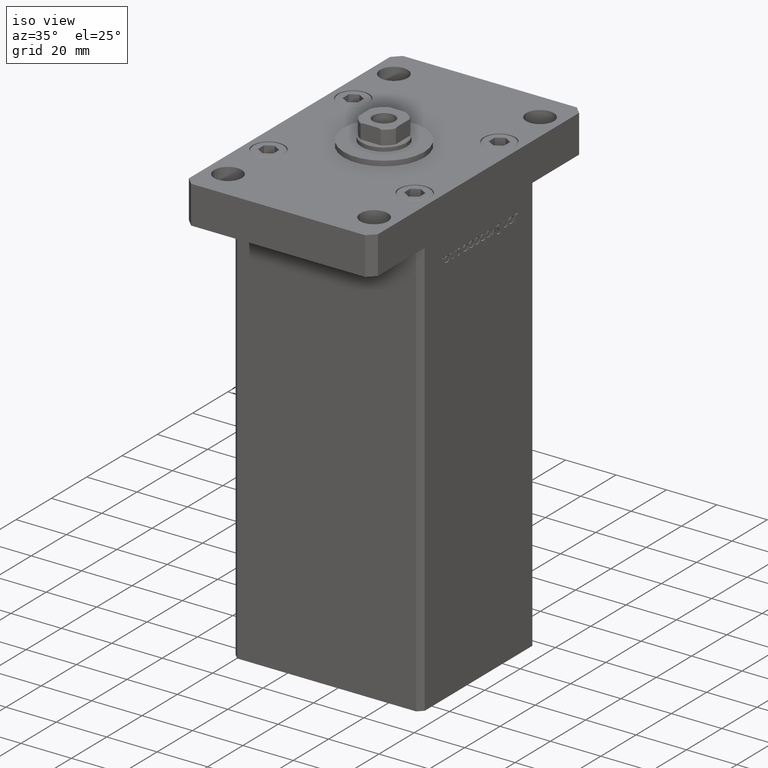
[diagram: clean part render]
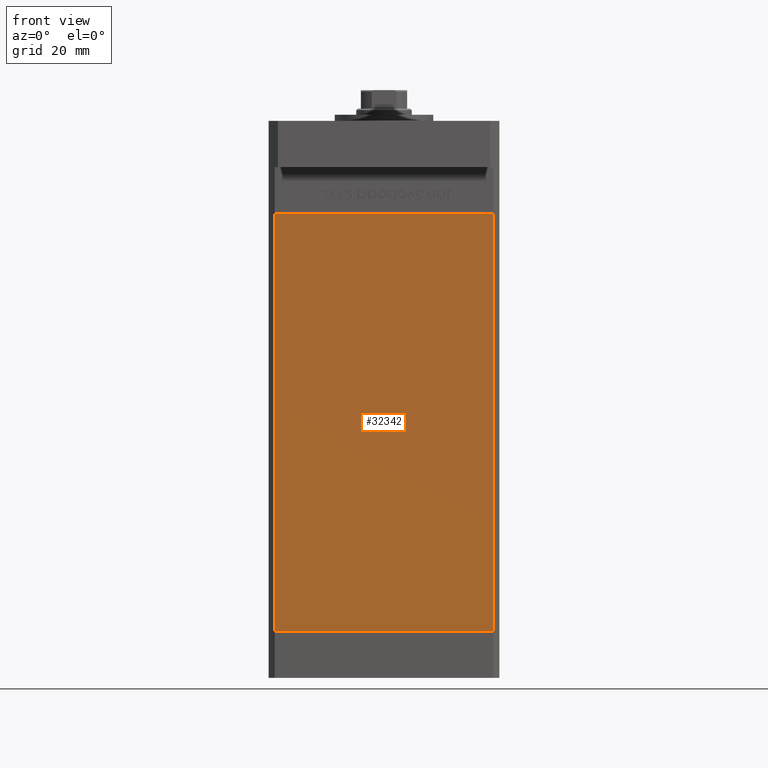
[diagram: tour spotlight — one face highlighted and labeled with its STEP entity id]
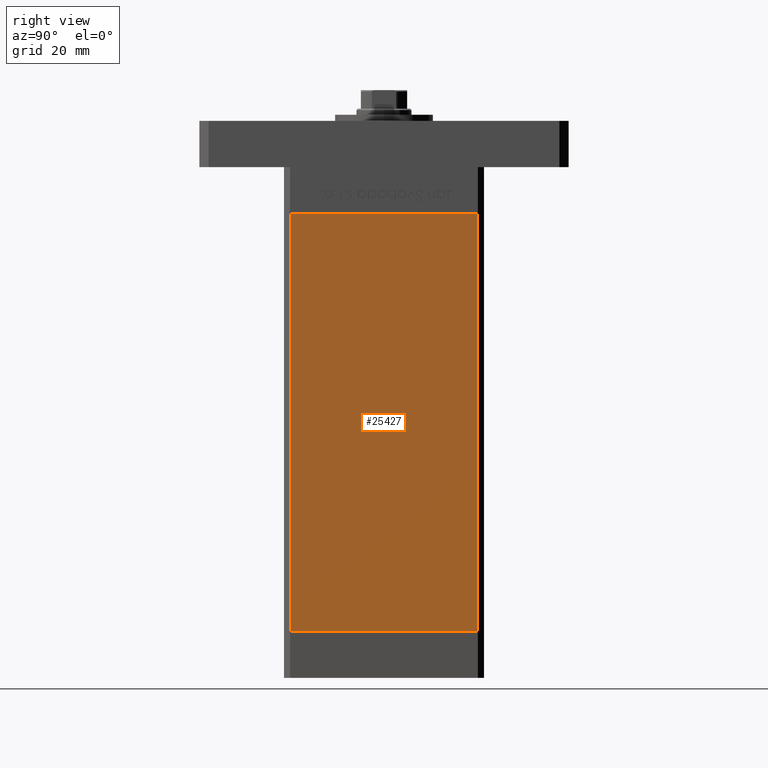
[diagram: tour spotlight — one face highlighted and labeled with its STEP entity id]
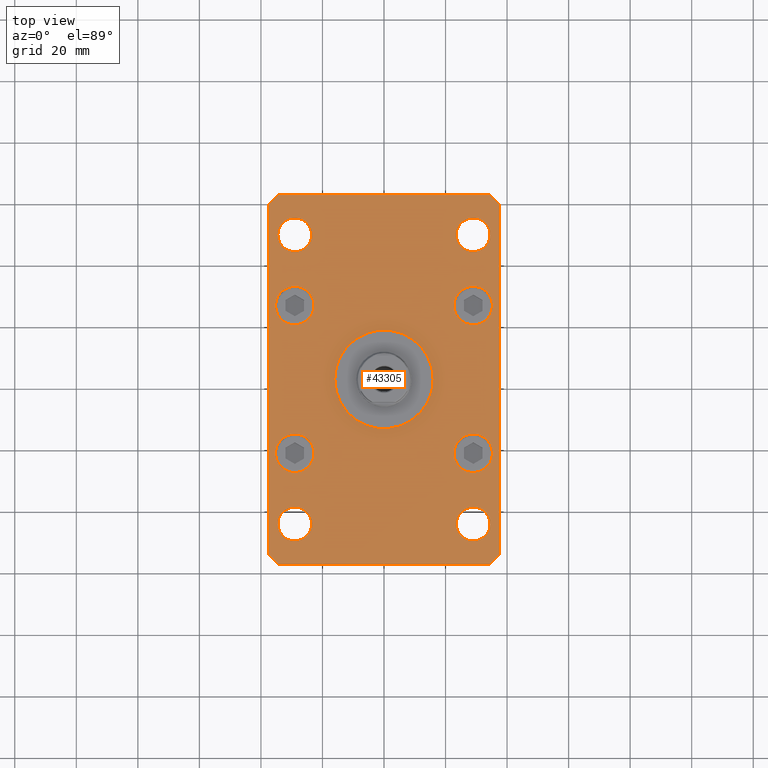
[diagram: tour spotlight — one face highlighted and labeled with its STEP entity id]
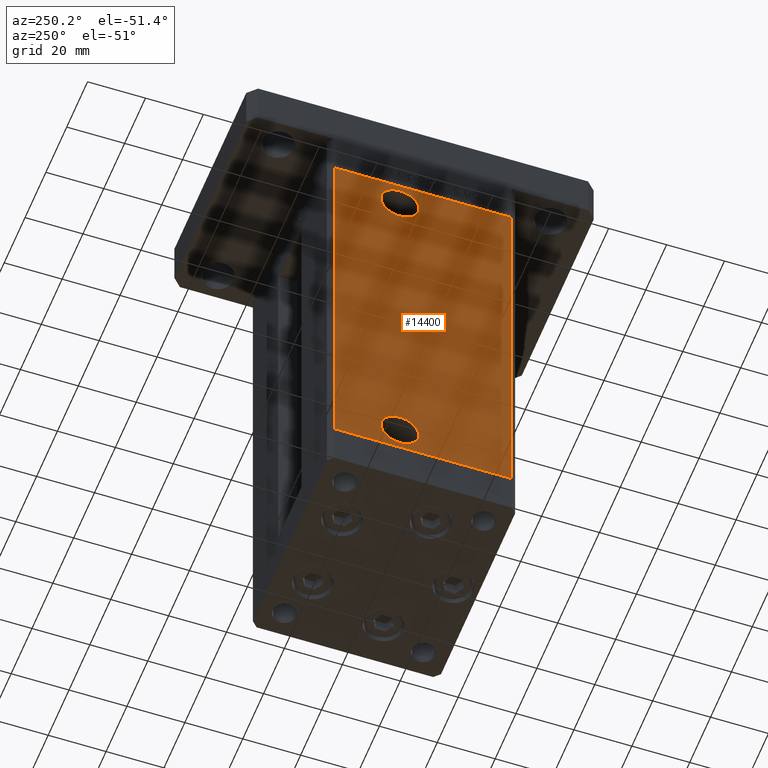
[diagram: tour spotlight — one face highlighted and labeled with its STEP entity id]
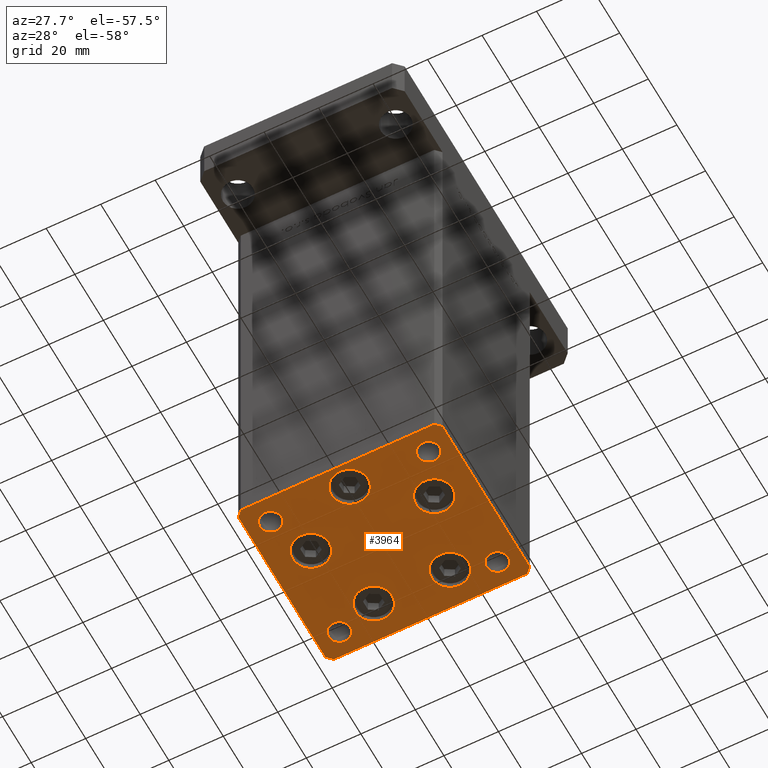
[diagram: tour spotlight — one face highlighted and labeled with its STEP entity id]
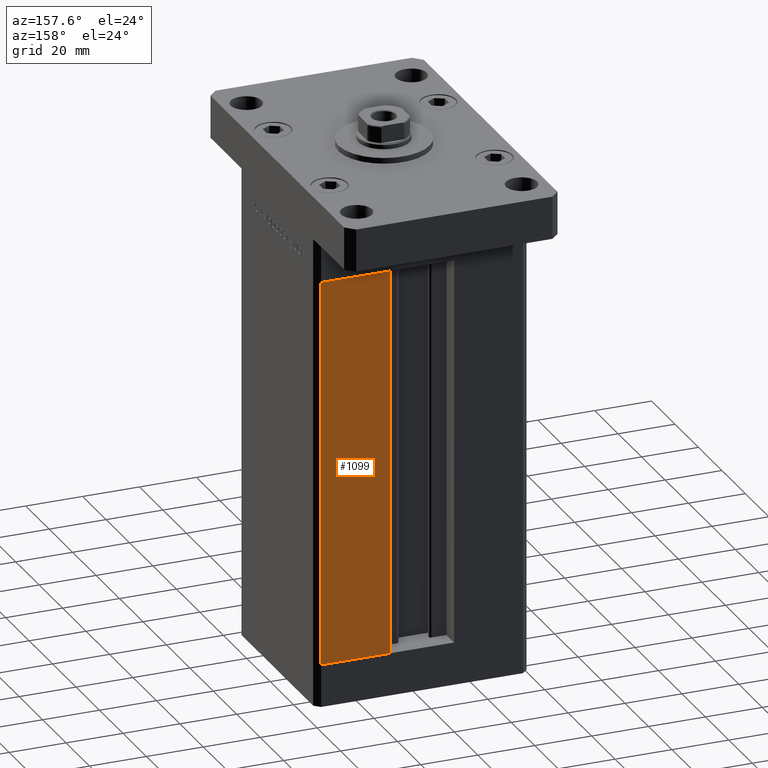
[diagram: tour spotlight — one face highlighted and labeled with its STEP entity id]
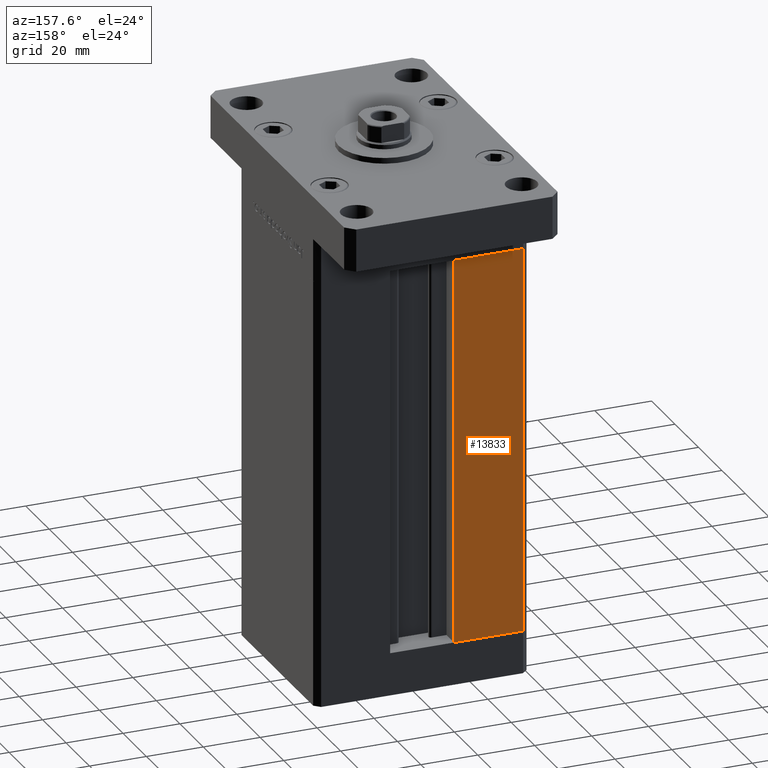
[diagram: tour spotlight — one face highlighted and labeled with its STEP entity id]
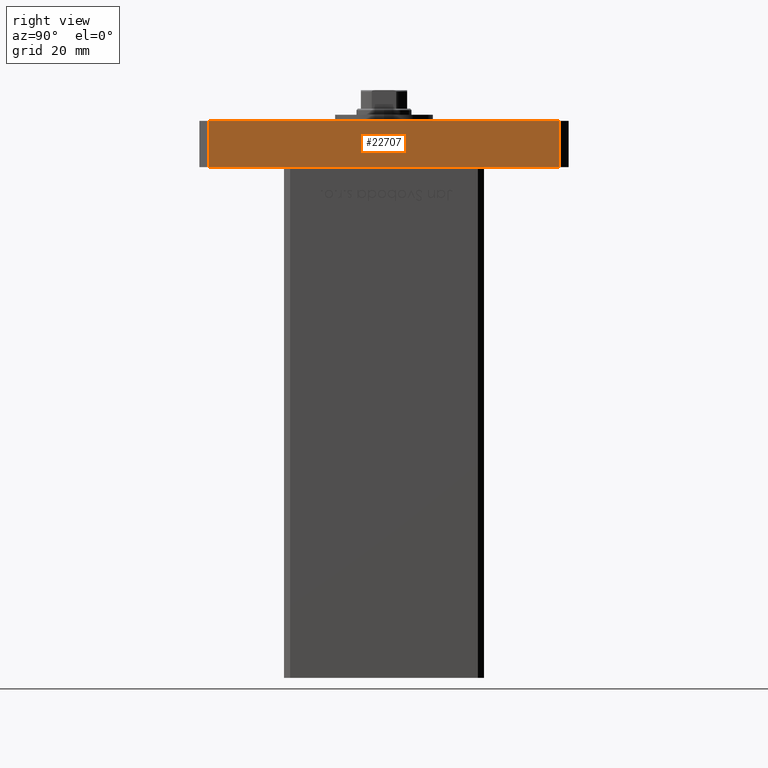
[diagram: tour spotlight — one face highlighted and labeled with its STEP entity id]
A machine part: a face-by-face anatomy tour. The part has 1308 B-rep faces; the first image is the clean iso view, then the 8 largest visible faces are spotlighted one at a time (largest first), each with its STEP entity span.

Face 1 — front view, entity #32342. In plain terms, the highlighted planar face has unit normal (0, 1, 0).
Definition (entity closure, byte-faithful):
#2393 = VERTEX_POINT ( 'NONE', #29846 ) ;
#2425 = VECTOR ( 'NONE', #49243, 1000.000000000000000 ) ;
#4948 = VERTEX_POINT ( 'NONE', #11210 ) ;
#6101 = LINE ( 'NONE', #51897, #23392 ) ;
#7051 = LINE ( 'NONE', #19516, #37961 ) ;
#8127 = ORIENTED_EDGE ( 'NONE', *, *, #52616, .F. ) ;
#9606 = CARTESIAN_POINT ( 'NONE',  ( -35.49999999999999289, -32.50000000000000000, 136.0000000000000000 ) ) ;
#11210 = CARTESIAN_POINT ( 'NONE',  ( 35.49999999999999289, -32.50000000000000000, 136.0000000000000000 ) ) ;
#14011 = ORIENTED_EDGE ( 'NONE', *, *, #34480, .T. ) ;
#14615 = VERTEX_POINT ( 'NONE', #48085 ) ;
#14757 = DIRECTION ( 'NONE',  ( 1.000000000000000000, 0.000000000000000000, 0.000000000000000000 ) ) ;
#16239 = EDGE_LOOP ( 'NONE', ( #45227, #8127, #53280, #14011 ) ) ;
#16731 = CARTESIAN_POINT ( 'NONE',  ( -35.49999999999999289, -32.50000000000000000, 0.000000000000000000 ) ) ;
#19516 = CARTESIAN_POINT ( 'NONE',  ( -35.49999999999999289, -32.50000000000000000, 136.0000000000000000 ) ) ;
#21880 = FACE_OUTER_BOUND ( 'NONE', #16239, .T. ) ;
#23392 = VECTOR ( 'NONE', #14757, 1000.000000000000000 ) ;
#23627 = VECTOR ( 'NONE', #38261, 1000.000000000000000 ) ;
#23984 = LINE ( 'NONE', #25274, #23627 ) ;
#25164 = DIRECTION ( 'NONE',  ( 0.000000000000000000, -0.000000000000000000, 1.000000000000000000 ) ) ;
#25274 = CARTESIAN_POINT ( 'NONE',  ( 35.49999999999999289, -32.50000000000000000, 136.0000000000000000 ) ) ;
#29771 = DIRECTION ( 'NONE',  ( 0.000000000000000000, 1.000000000000000000, 0.000000000000000000 ) ) ;
#29846 = CARTESIAN_POINT ( 'NONE',  ( -35.49999999999999289, -32.50000000000000000, 0.000000000000000000 ) ) ;
#30044 = VERTEX_POINT ( 'NONE', #9606 ) ;
#32342 = ADVANCED_FACE ( 'NONE', ( #21880 ), #50344, .F. ) ;
#34480 = EDGE_CURVE ( 'NONE', #30044, #2393, #7051, .T. ) ;
#35029 = EDGE_CURVE ( 'NONE', #2393, #14615, #37064, .T. ) ;
#36561 = AXIS2_PLACEMENT_3D ( 'NONE', #41680, #29771, #25164 ) ;
#37064 = LINE ( 'NONE', #16731, #2425 ) ;
#37961 = VECTOR ( 'NONE', #40929, 1000.000000000000000 ) ;
#38261 = DIRECTION ( 'NONE',  ( -0.000000000000000000, -0.000000000000000000, -1.000000000000000000 ) ) ;
#40929 = DIRECTION ( 'NONE',  ( -0.000000000000000000, -0.000000000000000000, -1.000000000000000000 ) ) ;
#41680 = CARTESIAN_POINT ( 'NONE',  ( -35.49999999999999289, -32.50000000000000000, 136.0000000000000000 ) ) ;
#44940 = EDGE_CURVE ( 'NONE', #30044, #4948, #6101, .T. ) ;
#45227 = ORIENTED_EDGE ( 'NONE', *, *, #35029, .T. ) ;
#48085 = CARTESIAN_POINT ( 'NONE',  ( 35.49999999999999289, -32.50000000000000000, 0.000000000000000000 ) ) ;
#49243 = DIRECTION ( 'NONE',  ( 1.000000000000000000, 0.000000000000000000, 0.000000000000000000 ) ) ;
#50344 = PLANE ( 'NONE',  #36561 ) ;
#51897 = CARTESIAN_POINT ( 'NONE',  ( -35.49999999999999289, -32.50000000000000000, 136.0000000000000000 ) ) ;
#52616 = EDGE_CURVE ( 'NONE', #4948, #14615, #23984, .T. ) ;
#53280 = ORIENTED_EDGE ( 'NONE', *, *, #44940, .F. ) ;

Face 2 — right view, entity #25427. In plain terms, the highlighted planar face has unit normal (1, -0, 0).
Definition (entity closure, byte-faithful):
#2926 = LINE ( 'NONE', #19464, #35734 ) ;
#4069 = ORIENTED_EDGE ( 'NONE', *, *, #45576, .F. ) ;
#4268 = PLANE ( 'NONE',  #7249 ) ;
#6631 = CARTESIAN_POINT ( 'NONE',  ( 37.50000000000000711, 30.50000000000000000, 0.000000000000000000 ) ) ;
#7249 = AXIS2_PLACEMENT_3D ( 'NONE', #16742, #49798, #21336 ) ;
#8794 = DIRECTION ( 'NONE',  ( -0.000000000000000000, -0.000000000000000000, -1.000000000000000000 ) ) ;
#9352 = ORIENTED_EDGE ( 'NONE', *, *, #21485, .T. ) ;
#10607 = VERTEX_POINT ( 'NONE', #21442 ) ;
#14335 = DIRECTION ( 'NONE',  ( -2.275047181608927644E-16, -1.000000000000000000, 0.000000000000000000 ) ) ;
#14444 = EDGE_CURVE ( 'NONE', #39229, #14590, #32442, .T. ) ;
#14590 = VERTEX_POINT ( 'NONE', #6631 ) ;
#15353 = LINE ( 'NONE', #40840, #31190 ) ;
#15785 = VECTOR ( 'NONE', #8794, 1000.000000000000000 ) ;
#16298 = CARTESIAN_POINT ( 'NONE',  ( 37.50000000000000711, 30.50000000000000000, 136.0000000000000000 ) ) ;
#16742 = CARTESIAN_POINT ( 'NONE',  ( 37.50000000000000711, 30.50000000000000000, 136.0000000000000000 ) ) ;
#19464 = CARTESIAN_POINT ( 'NONE',  ( 37.50000000000000711, 30.50000000000000000, 136.0000000000000000 ) ) ;
#20216 = CARTESIAN_POINT ( 'NONE',  ( 37.49999999999999289, -30.50000000000000000, 136.0000000000000000 ) ) ;
#21336 = DIRECTION ( 'NONE',  ( 2.275047181608927644E-16, 1.000000000000000000, 0.000000000000000000 ) ) ;
#21442 = CARTESIAN_POINT ( 'NONE',  ( 37.49999999999999289, -30.50000000000000000, 0.000000000000000000 ) ) ;
#21485 = EDGE_CURVE ( 'NONE', #36485, #10607, #33463, .T. ) ;
#24851 = DIRECTION ( 'NONE',  ( -0.000000000000000000, -0.000000000000000000, -1.000000000000000000 ) ) ;
#25163 = EDGE_LOOP ( 'NONE', ( #4069, #25814, #40772, #9352 ) ) ;
#25427 = ADVANCED_FACE ( 'NONE', ( #41402 ), #4268, .T. ) ;
#25814 = ORIENTED_EDGE ( 'NONE', *, *, #14444, .F. ) ;
#31190 = VECTOR ( 'NONE', #53029, 1000.000000000000000 ) ;
#32442 = LINE ( 'NONE', #49492, #38944 ) ;
#33463 = LINE ( 'NONE', #50784, #15785 ) ;
#35734 = VECTOR ( 'NONE', #14335, 1000.000000000000000 ) ;
#36485 = VERTEX_POINT ( 'NONE', #20216 ) ;
#38944 = VECTOR ( 'NONE', #24851, 1000.000000000000000 ) ;
#39229 = VERTEX_POINT ( 'NONE', #16298 ) ;
#40772 = ORIENTED_EDGE ( 'NONE', *, *, #52236, .T. ) ;
#40840 = CARTESIAN_POINT ( 'NONE',  ( 37.50000000000000711, 30.50000000000000000, 0.000000000000000000 ) ) ;
#41402 = FACE_OUTER_BOUND ( 'NONE', #25163, .T. ) ;
#45576 = EDGE_CURVE ( 'NONE', #14590, #10607, #15353, .T. ) ;
#49492 = CARTESIAN_POINT ( 'NONE',  ( 37.50000000000000711, 30.50000000000000000, 136.0000000000000000 ) ) ;
#49798 = DIRECTION ( 'NONE',  ( 1.000000000000000000, -2.275047181608927644E-16, 0.000000000000000000 ) ) ;
#50784 = CARTESIAN_POINT ( 'NONE',  ( 37.49999999999999289, -30.50000000000000000, 136.0000000000000000 ) ) ;
#52236 = EDGE_CURVE ( 'NONE', #39229, #36485, #2926, .T. ) ;
#53029 = DIRECTION ( 'NONE',  ( -2.275047181608927644E-16, -1.000000000000000000, 0.000000000000000000 ) ) ;

Face 3 — top view, entity #43305. In plain terms, the highlighted planar face has unit normal (0, 0, 1).
Definition (entity closure, byte-faithful):
#23 = ORIENTED_EDGE ( 'NONE', *, *, #49638, .F. ) ;
#64 = CIRCLE ( 'NONE', #49379, 5.499999999999994671 ) ;
#81 = VERTEX_POINT ( 'NONE', #12753 ) ;
#177 = EDGE_CURVE ( 'NONE', #81, #10940, #21963, .T. ) ;
#1018 = EDGE_LOOP ( 'NONE', ( #23, #33652 ) ) ;
#1163 = CARTESIAN_POINT ( 'NONE',  ( 0.000000000000000000, 0.000000000000000000, 15.00000000000000000 ) ) ;
#1572 = CARTESIAN_POINT ( 'NONE',  ( 29.00000000000000355, -24.00000000000001421, 15.00000000000000000 ) ) ;
#1906 = FACE_BOUND ( 'NONE', #40663, .T. ) ;
#2170 = FACE_BOUND ( 'NONE', #50742, .T. ) ;
#2422 = FACE_BOUND ( 'NONE', #22215, .T. ) ;
#2517 = DIRECTION ( 'NONE',  ( 0.000000000000000000, 0.000000000000000000, 1.000000000000000000 ) ) ;
#2622 = DIRECTION ( 'NONE',  ( -7.304098846218132695E-16, -1.000000000000000000, 0.000000000000000000 ) ) ;
#2752 = CIRCLE ( 'NONE', #31367, 6.249999999999998224 ) ;
#2923 = ORIENTED_EDGE ( 'NONE', *, *, #52509, .T. ) ;
#2986 = CARTESIAN_POINT ( 'NONE',  ( -34.49999999999999289, -47.00000000000002132, 15.00000000000000000 ) ) ;
#3655 = AXIS2_PLACEMENT_3D ( 'NONE', #6184, #51712, #22715 ) ;
#3816 = VERTEX_POINT ( 'NONE', #5080 ) ;
#3965 = CARTESIAN_POINT ( 'NONE',  ( 23.50000000000001776, -47.00000000000001421, 15.00000000000000000 ) ) ;
#4546 = VECTOR ( 'NONE', #44616, 1000.000000000000114 ) ;
#4590 = EDGE_LOOP ( 'NONE', ( #52590, #31693 ) ) ;
#4704 = VERTEX_POINT ( 'NONE', #18088 ) ;
#4727 = DIRECTION ( 'NONE',  ( 1.000000000000000000, 0.000000000000000000, 0.000000000000000000 ) ) ;
#5058 = CARTESIAN_POINT ( 'NONE',  ( 34.50000000000002132, -60.00000000000000711, 15.00000000000000000 ) ) ;
#5080 = CARTESIAN_POINT ( 'NONE',  ( -35.25000000000000000, 24.00000000000000000, 15.00000000000000000 ) ) ;
#5306 = CARTESIAN_POINT ( 'NONE',  ( -28.99999999999999645, -47.00000000000002132, 15.00000000000000000 ) ) ;
#5586 = CARTESIAN_POINT ( 'NONE',  ( 29.00000000000000355, -24.00000000000001421, 15.00000000000000000 ) ) ;
#5617 = VERTEX_POINT ( 'NONE', #3965 ) ;
#5837 = CARTESIAN_POINT ( 'NONE',  ( 23.50000000000001776, 47.00000000000000711, 15.00000000000000000 ) ) ;
#5935 = VECTOR ( 'NONE', #2622, 1000.000000000000000 ) ;
#6074 = CARTESIAN_POINT ( 'NONE',  ( 37.50000000000011369, 56.99999999999988631, 15.00000000000000000 ) ) ;
#6184 = CARTESIAN_POINT ( 'NONE',  ( 29.00000000000000711, 47.00000000000000711, 15.00000000000000000 ) ) ;
#6640 = VECTOR ( 'NONE', #22224, 1000.000000000000000 ) ;
#6819 = DIRECTION ( 'NONE',  ( 0.7071067811865467956, 0.7071067811865483499, 0.000000000000000000 ) ) ;
#7030 = FACE_BOUND ( 'NONE', #39589, .T. ) ;
#7717 = CIRCLE ( 'NONE', #13783, 6.249999999999998224 ) ;
#8267 = DIRECTION ( 'NONE',  ( 0.000000000000000000, 0.000000000000000000, 1.000000000000000000 ) ) ;
#8321 = CIRCLE ( 'NONE', #38608, 6.249999999999998224 ) ;
#8823 = VERTEX_POINT ( 'NONE', #27905 ) ;
#9152 = EDGE_CURVE ( 'NONE', #34911, #43044, #19148, .T. ) ;
#9532 = LINE ( 'NONE', #26080, #42621 ) ;
#9712 = DIRECTION ( 'NONE',  ( 0.000000000000000000, 0.000000000000000000, 1.000000000000000000 ) ) ;
#9758 = VERTEX_POINT ( 'NONE', #9782 ) ;
#9782 = CARTESIAN_POINT ( 'NONE',  ( -23.50000000000000355, -47.00000000000002132, 15.00000000000000000 ) ) ;
#10303 = CARTESIAN_POINT ( 'NONE',  ( 37.50000000000011369, -56.99999999999990763, 15.00000000000000000 ) ) ;
#10383 = VERTEX_POINT ( 'NONE', #36983 ) ;
#10399 = AXIS2_PLACEMENT_3D ( 'NONE', #10833, #31178, #52036 ) ;
#10833 = CARTESIAN_POINT ( 'NONE',  ( 0.000000000000000000, 0.000000000000000000, 15.00000000000000000 ) ) ;
#10940 = VERTEX_POINT ( 'NONE', #18310 ) ;
#11104 = EDGE_CURVE ( 'NONE', #52999, #3816, #39703, .T. ) ;
#11405 = LINE ( 'NONE', #28496, #20881 ) ;
#12313 = AXIS2_PLACEMENT_3D ( 'NONE', #23168, #15028, #38651 ) ;
#12753 = CARTESIAN_POINT ( 'NONE',  ( 37.50000000000011369, -56.99999999999990763, 15.00000000000000000 ) ) ;
#12832 = EDGE_CURVE ( 'NONE', #26243, #10383, #7717, .T. ) ;
#13077 = DIRECTION ( 'NONE',  ( 0.000000000000000000, 0.000000000000000000, 1.000000000000000000 ) ) ;
#13490 = DIRECTION ( 'NONE',  ( 1.000000000000000000, 0.000000000000000000, 0.000000000000000000 ) ) ;
#13783 = AXIS2_PLACEMENT_3D ( 'NONE', #36516, #48703, #15100 ) ;
#14311 = CARTESIAN_POINT ( 'NONE',  ( 29.00000000000000711, 24.00000000000000711, 15.00000000000000000 ) ) ;
#14481 = EDGE_CURVE ( 'NONE', #9758, #29207, #39825, .T. ) ;
#14916 = DIRECTION ( 'NONE',  ( -1.000000000000000000, -2.011273595335426847E-16, 0.000000000000000000 ) ) ;
#15028 = DIRECTION ( 'NONE',  ( 0.000000000000000000, 0.000000000000000000, 1.000000000000000000 ) ) ;
#15033 = DIRECTION ( 'NONE',  ( 0.000000000000000000, 0.000000000000000000, 1.000000000000000000 ) ) ;
#15100 = DIRECTION ( 'NONE',  ( 1.000000000000000000, 0.000000000000000000, 0.000000000000000000 ) ) ;
#15439 = CARTESIAN_POINT ( 'NONE',  ( -34.49999999999992184, 59.99999999999997158, 15.00000000000000000 ) ) ;
#15444 = DIRECTION ( 'NONE',  ( 0.000000000000000000, 0.000000000000000000, 1.000000000000000000 ) ) ;
#15874 = AXIS2_PLACEMENT_3D ( 'NONE', #14311, #22448, #19437 ) ;
#16793 = EDGE_CURVE ( 'NONE', #8823, #27094, #64, .T. ) ;
#16817 = EDGE_LOOP ( 'NONE', ( #42476, #29115 ) ) ;
#16962 = CARTESIAN_POINT ( 'NONE',  ( -37.49999999999999289, -57.00000000000002132, 15.00000000000000000 ) ) ;
#17607 = EDGE_CURVE ( 'NONE', #3816, #52999, #41659, .T. ) ;
#17617 = AXIS2_PLACEMENT_3D ( 'NONE', #1163, #13077, #30172 ) ;
#17934 = CARTESIAN_POINT ( 'NONE',  ( -16.00000000000000000, 0.000000000000000000, 15.00000000000000000 ) ) ;
#18088 = CARTESIAN_POINT ( 'NONE',  ( 22.75000000000000355, 24.00000000000000711, 15.00000000000000000 ) ) ;
#18310 = CARTESIAN_POINT ( 'NONE',  ( 37.50000000000011369, 56.99999999999988631, 15.00000000000000000 ) ) ;
#18470 = VECTOR ( 'NONE', #6819, 1000.000000000000000 ) ;
#18693 = PLANE ( 'NONE',  #10399 ) ;
#18880 = EDGE_CURVE ( 'NONE', #25769, #46354, #45178, .T. ) ;
#18954 = FACE_BOUND ( 'NONE', #37366, .T. ) ;
#19140 = CARTESIAN_POINT ( 'NONE',  ( -37.49999999999999289, -57.00000000000002132, 15.00000000000000000 ) ) ;
#19148 = LINE ( 'NONE', #43308, #5935 ) ;
#19414 = EDGE_CURVE ( 'NONE', #22689, #4704, #33040, .T. ) ;
#19437 = DIRECTION ( 'NONE',  ( 1.000000000000000000, 0.000000000000000000, 0.000000000000000000 ) ) ;
#19519 = CARTESIAN_POINT ( 'NONE',  ( -28.99999999999999645, -24.00000000000002132, 15.00000000000000000 ) ) ;
#19719 = ORIENTED_EDGE ( 'NONE', *, *, #17607, .F. ) ;
#20312 = CARTESIAN_POINT ( 'NONE',  ( 34.50000000000000000, 47.00000000000000711, 15.00000000000000000 ) ) ;
#20545 = EDGE_CURVE ( 'NONE', #33617, #49668, #2752, .T. ) ;
#20597 = VERTEX_POINT ( 'NONE', #39694 ) ;
#20599 = EDGE_CURVE ( 'NONE', #20597, #5617, #52125, .T. ) ;
#20881 = VECTOR ( 'NONE', #40410, 1000.000000000000000 ) ;
#21014 = CARTESIAN_POINT ( 'NONE',  ( -29.00000000000000355, 47.00000000000000000, 15.00000000000000000 ) ) ;
#21037 = EDGE_CURVE ( 'NONE', #49468, #49041, #43514, .T. ) ;
#21101 = CARTESIAN_POINT ( 'NONE',  ( -34.49999999999999289, -60.00000000000002132, 15.00000000000000000 ) ) ;
#21484 = DIRECTION ( 'NONE',  ( 0.000000000000000000, 0.000000000000000000, 1.000000000000000000 ) ) ;
#21755 = DIRECTION ( 'NONE',  ( 1.000000000000000000, 0.000000000000000000, 0.000000000000000000 ) ) ;
#21906 = EDGE_CURVE ( 'NONE', #24964, #34487, #9532, .T. ) ;
#21963 = LINE ( 'NONE', #10303, #6640 ) ;
#21965 = CIRCLE ( 'NONE', #15874, 6.250000000000001776 ) ;
#22091 = ORIENTED_EDGE ( 'NONE', *, *, #14481, .F. ) ;
#22213 = DIRECTION ( 'NONE',  ( 1.000000000000000000, 0.000000000000000000, 0.000000000000000000 ) ) ;
#22215 = EDGE_LOOP ( 'NONE', ( #19719, #30457 ) ) ;
#22224 = DIRECTION ( 'NONE',  ( 0.000000000000000000, 1.000000000000000000, 0.000000000000000000 ) ) ;
#22448 = DIRECTION ( 'NONE',  ( 0.000000000000000000, 0.000000000000000000, 1.000000000000000000 ) ) ;
#22608 = DIRECTION ( 'NONE',  ( -0.7071067811865335839, 0.7071067811865614505, 0.000000000000000000 ) ) ;
#22689 = VERTEX_POINT ( 'NONE', #33478 ) ;
#22715 = DIRECTION ( 'NONE',  ( 1.000000000000000000, 0.000000000000000000, 0.000000000000000000 ) ) ;
#23168 = CARTESIAN_POINT ( 'NONE',  ( 29.00000000000001066, -47.00000000000001421, 15.00000000000000000 ) ) ;
#23239 = CARTESIAN_POINT ( 'NONE',  ( 22.75000000000000711, -24.00000000000001421, 15.00000000000000000 ) ) ;
#23722 = DIRECTION ( 'NONE',  ( 1.000000000000000000, 0.000000000000000000, 0.000000000000000000 ) ) ;
#23993 = EDGE_CURVE ( 'NONE', #46354, #25769, #34930, .T. ) ;
#24144 = AXIS2_PLACEMENT_3D ( 'NONE', #21014, #41090, #53533 ) ;
#24264 = ORIENTED_EDGE ( 'NONE', *, *, #27687, .T. ) ;
#24852 = EDGE_CURVE ( 'NONE', #43044, #37117, #28097, .T. ) ;
#24939 = DIRECTION ( 'NONE',  ( 1.000000000000000000, 0.000000000000000000, 0.000000000000000000 ) ) ;
#24964 = VERTEX_POINT ( 'NONE', #41096 ) ;
#25447 = CARTESIAN_POINT ( 'NONE',  ( -23.50000000000001066, 47.00000000000000000, 15.00000000000000000 ) ) ;
#25535 = ORIENTED_EDGE ( 'NONE', *, *, #39416, .F. ) ;
#25749 = ORIENTED_EDGE ( 'NONE', *, *, #20545, .F. ) ;
#25769 = VERTEX_POINT ( 'NONE', #17934 ) ;
#26080 = CARTESIAN_POINT ( 'NONE',  ( 34.50000000000013500, 59.99999999999998579, 15.00000000000000000 ) ) ;
#26243 = VERTEX_POINT ( 'NONE', #33296 ) ;
#26335 = DIRECTION ( 'NONE',  ( 1.000000000000000000, 0.000000000000000000, 0.000000000000000000 ) ) ;
#27094 = VERTEX_POINT ( 'NONE', #25447 ) ;
#27372 = FACE_BOUND ( 'NONE', #4590, .T. ) ;
#27607 = CARTESIAN_POINT ( 'NONE',  ( 0.000000000000000000, 0.000000000000000000, 15.00000000000000000 ) ) ;
#27687 = EDGE_CURVE ( 'NONE', #35157, #81, #36089, .T. ) ;
#27694 = CARTESIAN_POINT ( 'NONE',  ( 34.50000000000002132, -60.00000000000000711, 15.00000000000000000 ) ) ;
#27904 = FACE_BOUND ( 'NONE', #1018, .T. ) ;
#27905 = CARTESIAN_POINT ( 'NONE',  ( -34.50000000000000000, 47.00000000000000000, 15.00000000000000000 ) ) ;
#28097 = LINE ( 'NONE', #19140, #4546 ) ;
#28152 = EDGE_LOOP ( 'NONE', ( #46829, #24264, #38556, #2923, #32763, #36394, #40417, #52001 ) ) ;
#28496 = CARTESIAN_POINT ( 'NONE',  ( -34.49999999999999289, -60.00000000000002132, 15.00000000000000000 ) ) ;
#28794 = ORIENTED_EDGE ( 'NONE', *, *, #16793, .F. ) ;
#29115 = ORIENTED_EDGE ( 'NONE', *, *, #20599, .F. ) ;
#29207 = VERTEX_POINT ( 'NONE', #2986 ) ;
#29593 = ORIENTED_EDGE ( 'NONE', *, *, #31255, .F. ) ;
#29603 = AXIS2_PLACEMENT_3D ( 'NONE', #29642, #38562, #21755 ) ;
#29642 = CARTESIAN_POINT ( 'NONE',  ( 29.00000000000000711, 24.00000000000000711, 15.00000000000000000 ) ) ;
#29728 = DIRECTION ( 'NONE',  ( 0.000000000000000000, 0.000000000000000000, 1.000000000000000000 ) ) ;
#30089 = EDGE_LOOP ( 'NONE', ( #29593, #50466 ) ) ;
#30172 = DIRECTION ( 'NONE',  ( 1.000000000000000000, 0.000000000000000000, 0.000000000000000000 ) ) ;
#30403 = CARTESIAN_POINT ( 'NONE',  ( 35.25000000000000000, -24.00000000000001421, 15.00000000000000000 ) ) ;
#30457 = ORIENTED_EDGE ( 'NONE', *, *, #11104, .F. ) ;
#31056 = DIRECTION ( 'NONE',  ( 0.000000000000000000, 0.000000000000000000, 1.000000000000000000 ) ) ;
#31178 = DIRECTION ( 'NONE',  ( 0.000000000000000000, 0.000000000000000000, 1.000000000000000000 ) ) ;
#31199 = DIRECTION ( 'NONE',  ( 0.000000000000000000, 0.000000000000000000, 1.000000000000000000 ) ) ;
#31255 = EDGE_CURVE ( 'NONE', #10383, #26243, #8321, .T. ) ;
#31288 = AXIS2_PLACEMENT_3D ( 'NONE', #43197, #2517, #39396 ) ;
#31323 = LINE ( 'NONE', #39696, #32070 ) ;
#31332 = AXIS2_PLACEMENT_3D ( 'NONE', #27607, #44140, #22213 ) ;
#31367 = AXIS2_PLACEMENT_3D ( 'NONE', #5586, #31056, #47054 ) ;
#31693 = ORIENTED_EDGE ( 'NONE', *, *, #19414, .F. ) ;
#32001 = DIRECTION ( 'NONE',  ( 1.000000000000000000, 0.000000000000000000, 0.000000000000000000 ) ) ;
#32070 = VECTOR ( 'NONE', #52692, 1000.000000000000114 ) ;
#32763 = ORIENTED_EDGE ( 'NONE', *, *, #21906, .T. ) ;
#33040 = CIRCLE ( 'NONE', #29603, 6.250000000000001776 ) ;
#33296 = CARTESIAN_POINT ( 'NONE',  ( -22.75000000000000000, -24.00000000000002132, 15.00000000000000000 ) ) ;
#33478 = CARTESIAN_POINT ( 'NONE',  ( 35.25000000000000711, 24.00000000000000711, 15.00000000000000000 ) ) ;
#33597 = DIRECTION ( 'NONE',  ( 0.000000000000000000, 0.000000000000000000, 1.000000000000000000 ) ) ;
#33617 = VERTEX_POINT ( 'NONE', #30403 ) ;
#33652 = ORIENTED_EDGE ( 'NONE', *, *, #21037, .F. ) ;
#33972 = CIRCLE ( 'NONE', #49508, 5.499999999999998224 ) ;
#34487 = VERTEX_POINT ( 'NONE', #15439 ) ;
#34784 = AXIS2_PLACEMENT_3D ( 'NONE', #46696, #21484, #37502 ) ;
#34821 = LINE ( 'NONE', #6074, #44400 ) ;
#34911 = VERTEX_POINT ( 'NONE', #40579 ) ;
#34930 = CIRCLE ( 'NONE', #17617, 16.00000000000000000 ) ;
#35157 = VERTEX_POINT ( 'NONE', #5058 ) ;
#35503 = FACE_BOUND ( 'NONE', #30089, .T. ) ;
#35621 = CIRCLE ( 'NONE', #34784, 5.499999999999994671 ) ;
#35770 = FACE_BOUND ( 'NONE', #16817, .T. ) ;
#36089 = LINE ( 'NONE', #27694, #18470 ) ;
#36265 = AXIS2_PLACEMENT_3D ( 'NONE', #52177, #15033, #23722 ) ;
#36394 = ORIENTED_EDGE ( 'NONE', *, *, #40527, .T. ) ;
#36516 = CARTESIAN_POINT ( 'NONE',  ( -28.99999999999999645, -24.00000000000002132, 15.00000000000000000 ) ) ;
#36524 = EDGE_CURVE ( 'NONE', #27094, #8823, #43180, .T. ) ;
#36983 = CARTESIAN_POINT ( 'NONE',  ( -35.25000000000000000, -24.00000000000002132, 15.00000000000000000 ) ) ;
#37117 = VERTEX_POINT ( 'NONE', #21101 ) ;
#37189 = CARTESIAN_POINT ( 'NONE',  ( 16.00000000000000000, 1.959434878635765131E-15, 15.00000000000000000 ) ) ;
#37265 = CARTESIAN_POINT ( 'NONE',  ( -29.00000000000000355, 47.00000000000000000, 15.00000000000000000 ) ) ;
#37366 = EDGE_LOOP ( 'NONE', ( #28794, #51282 ) ) ;
#37502 = DIRECTION ( 'NONE',  ( 1.000000000000000000, 0.000000000000000000, 0.000000000000000000 ) ) ;
#38118 = CIRCLE ( 'NONE', #48452, 6.249999999999998224 ) ;
#38198 = CARTESIAN_POINT ( 'NONE',  ( 29.00000000000001066, -47.00000000000001421, 15.00000000000000000 ) ) ;
#38556 = ORIENTED_EDGE ( 'NONE', *, *, #177, .T. ) ;
#38562 = DIRECTION ( 'NONE',  ( 0.000000000000000000, 0.000000000000000000, 1.000000000000000000 ) ) ;
#38608 = AXIS2_PLACEMENT_3D ( 'NONE', #19519, #15444, #32001 ) ;
#38651 = DIRECTION ( 'NONE',  ( 1.000000000000000000, 0.000000000000000000, 0.000000000000000000 ) ) ;
#39396 = DIRECTION ( 'NONE',  ( 1.000000000000000000, 0.000000000000000000, 0.000000000000000000 ) ) ;
#39416 = EDGE_CURVE ( 'NONE', #49668, #33617, #38118, .T. ) ;
#39589 = EDGE_LOOP ( 'NONE', ( #25535, #25749 ) ) ;
#39694 = CARTESIAN_POINT ( 'NONE',  ( 34.50000000000000711, -47.00000000000001421, 15.00000000000000000 ) ) ;
#39696 = CARTESIAN_POINT ( 'NONE',  ( -34.49999999999992184, 59.99999999999997158, 15.00000000000000000 ) ) ;
#39703 = CIRCLE ( 'NONE', #36265, 6.249999999999998224 ) ;
#39825 = CIRCLE ( 'NONE', #45018, 5.499999999999994671 ) ;
#40095 = FACE_OUTER_BOUND ( 'NONE', #28152, .T. ) ;
#40410 = DIRECTION ( 'NONE',  ( 1.000000000000000000, 2.011273595335427833E-16, 0.000000000000000000 ) ) ;
#40417 = ORIENTED_EDGE ( 'NONE', *, *, #9152, .T. ) ;
#40527 = EDGE_CURVE ( 'NONE', #34487, #34911, #31323, .T. ) ;
#40579 = CARTESIAN_POINT ( 'NONE',  ( -37.49999999999990763, 57.00000000000000711, 15.00000000000000000 ) ) ;
#40663 = EDGE_LOOP ( 'NONE', ( #51007, #40685 ) ) ;
#40685 = ORIENTED_EDGE ( 'NONE', *, *, #23993, .F. ) ;
#41090 = DIRECTION ( 'NONE',  ( 0.000000000000000000, 0.000000000000000000, 1.000000000000000000 ) ) ;
#41096 = CARTESIAN_POINT ( 'NONE',  ( 34.50000000000013500, 59.99999999999998579, 15.00000000000000000 ) ) ;
#41642 = DIRECTION ( 'NONE',  ( 1.000000000000000000, 0.000000000000000000, 0.000000000000000000 ) ) ;
#41659 = CIRCLE ( 'NONE', #31288, 6.249999999999998224 ) ;
#42476 = ORIENTED_EDGE ( 'NONE', *, *, #49978, .F. ) ;
#42586 = CARTESIAN_POINT ( 'NONE',  ( 29.00000000000000711, 47.00000000000000711, 15.00000000000000000 ) ) ;
#42621 = VECTOR ( 'NONE', #14916, 1000.000000000000000 ) ;
#43044 = VERTEX_POINT ( 'NONE', #16962 ) ;
#43180 = CIRCLE ( 'NONE', #24144, 5.499999999999994671 ) ;
#43197 = CARTESIAN_POINT ( 'NONE',  ( -29.00000000000000355, 24.00000000000000000, 15.00000000000000000 ) ) ;
#43305 = ADVANCED_FACE ( 'NONE', ( #1906, #2422, #7030, #18954, #2170, #40095, #27904, #35503, #27372, #35770 ), #18693, .T. ) ;
#43308 = CARTESIAN_POINT ( 'NONE',  ( -37.49999999999990763, 57.00000000000000711, 15.00000000000000000 ) ) ;
#43514 = CIRCLE ( 'NONE', #53006, 5.499999999999994671 ) ;
#44140 = DIRECTION ( 'NONE',  ( 0.000000000000000000, 0.000000000000000000, 1.000000000000000000 ) ) ;
#44400 = VECTOR ( 'NONE', #22608, 1000.000000000000000 ) ;
#44616 = DIRECTION ( 'NONE',  ( 0.7071067811865474617, -0.7071067811865474617, 0.000000000000000000 ) ) ;
#45018 = AXIS2_PLACEMENT_3D ( 'NONE', #5306, #29728, #41642 ) ;
#45178 = CIRCLE ( 'NONE', #31332, 16.00000000000000000 ) ;
#46354 = VERTEX_POINT ( 'NONE', #37189 ) ;
#46696 = CARTESIAN_POINT ( 'NONE',  ( -28.99999999999999645, -47.00000000000002132, 15.00000000000000000 ) ) ;
#46829 = ORIENTED_EDGE ( 'NONE', *, *, #47571, .T. ) ;
#46932 = CIRCLE ( 'NONE', #3655, 5.499999999999994671 ) ;
#47054 = DIRECTION ( 'NONE',  ( 1.000000000000000000, 0.000000000000000000, 0.000000000000000000 ) ) ;
#47571 = EDGE_CURVE ( 'NONE', #37117, #35157, #11405, .T. ) ;
#48195 = EDGE_CURVE ( 'NONE', #29207, #9758, #35621, .T. ) ;
#48452 = AXIS2_PLACEMENT_3D ( 'NONE', #1572, #9712, #13490 ) ;
#48703 = DIRECTION ( 'NONE',  ( 0.000000000000000000, 0.000000000000000000, 1.000000000000000000 ) ) ;
#49041 = VERTEX_POINT ( 'NONE', #5837 ) ;
#49379 = AXIS2_PLACEMENT_3D ( 'NONE', #37265, #8267, #4727 ) ;
#49468 = VERTEX_POINT ( 'NONE', #20312 ) ;
#49508 = AXIS2_PLACEMENT_3D ( 'NONE', #38198, #33597, #24939 ) ;
#49638 = EDGE_CURVE ( 'NONE', #49041, #49468, #46932, .T. ) ;
#49668 = VERTEX_POINT ( 'NONE', #23239 ) ;
#49961 = CARTESIAN_POINT ( 'NONE',  ( -22.75000000000000711, 24.00000000000000000, 15.00000000000000000 ) ) ;
#49978 = EDGE_CURVE ( 'NONE', #5617, #20597, #33972, .T. ) ;
#50075 = ORIENTED_EDGE ( 'NONE', *, *, #48195, .F. ) ;
#50466 = ORIENTED_EDGE ( 'NONE', *, *, #12832, .F. ) ;
#50742 = EDGE_LOOP ( 'NONE', ( #50075, #22091 ) ) ;
#51007 = ORIENTED_EDGE ( 'NONE', *, *, #18880, .F. ) ;
#51282 = ORIENTED_EDGE ( 'NONE', *, *, #36524, .F. ) ;
#51712 = DIRECTION ( 'NONE',  ( 0.000000000000000000, 0.000000000000000000, 1.000000000000000000 ) ) ;
#52001 = ORIENTED_EDGE ( 'NONE', *, *, #24852, .T. ) ;
#52036 = DIRECTION ( 'NONE',  ( 1.000000000000000000, 0.000000000000000000, -0.000000000000000000 ) ) ;
#52125 = CIRCLE ( 'NONE', #12313, 5.499999999999998224 ) ;
#52177 = CARTESIAN_POINT ( 'NONE',  ( -29.00000000000000355, 24.00000000000000000, 15.00000000000000000 ) ) ;
#52509 = EDGE_CURVE ( 'NONE', #10940, #24964, #34821, .T. ) ;
#52590 = ORIENTED_EDGE ( 'NONE', *, *, #53566, .F. ) ;
#52692 = DIRECTION ( 'NONE',  ( -0.7071067811865507924, -0.7071067811865442421, 0.000000000000000000 ) ) ;
#52999 = VERTEX_POINT ( 'NONE', #49961 ) ;
#53006 = AXIS2_PLACEMENT_3D ( 'NONE', #42586, #31199, #26335 ) ;
#53533 = DIRECTION ( 'NONE',  ( 1.000000000000000000, 0.000000000000000000, 0.000000000000000000 ) ) ;
#53566 = EDGE_CURVE ( 'NONE', #4704, #22689, #21965, .T. ) ;

Face 4 — auxiliary view, entity #14400. In plain terms, the highlighted planar face has unit normal (1, 0, 0).
Definition (entity closure, byte-faithful):
#1087 = ORIENTED_EDGE ( 'NONE', *, *, #27391, .T. ) ;
#2545 = ORIENTED_EDGE ( 'NONE', *, *, #9492, .F. ) ;
#3156 = FACE_OUTER_BOUND ( 'NONE', #39665, .T. ) ;
#4960 = VERTEX_POINT ( 'NONE', #35103 ) ;
#5615 = DIRECTION ( 'NONE',  ( -0.000000000000000000, -0.000000000000000000, -1.000000000000000000 ) ) ;
#6192 = DIRECTION ( 'NONE',  ( 0.000000000000000000, -1.000000000000000000, 0.000000000000000000 ) ) ;
#6613 = DIRECTION ( 'NONE',  ( -1.000000000000000000, -2.275047181608927644E-16, 0.000000000000000000 ) ) ;
#6824 = VERTEX_POINT ( 'NONE', #26755 ) ;
#6902 = VECTOR ( 'NONE', #45462, 1000.000000000000000 ) ;
#6978 = AXIS2_PLACEMENT_3D ( 'NONE', #51718, #14321, #6192 ) ;
#7298 = EDGE_CURVE ( 'NONE', #6824, #26470, #19819, .T. ) ;
#7763 = DIRECTION ( 'NONE',  ( -2.275047181608927644E-16, 1.000000000000000000, 0.000000000000000000 ) ) ;
#9492 = EDGE_CURVE ( 'NONE', #26470, #6824, #11112, .T. ) ;
#9644 = CARTESIAN_POINT ( 'NONE',  ( -37.50000000000000000, 7.999999999999991118, 9.000000000000000000 ) ) ;
#10161 = LINE ( 'NONE', #50558, #52201 ) ;
#11112 = CIRCLE ( 'NONE', #24996, 6.580000000000003624 ) ;
#11556 = CARTESIAN_POINT ( 'NONE',  ( -37.50000000000000711, 30.50000000000000000, 136.0000000000000000 ) ) ;
#11794 = CARTESIAN_POINT ( 'NONE',  ( -37.50000000000000000, 14.57999999999999652, 9.000000000000000000 ) ) ;
#12346 = VERTEX_POINT ( 'NONE', #20911 ) ;
#12440 = ORIENTED_EDGE ( 'NONE', *, *, #16229, .F. ) ;
#12796 = CIRCLE ( 'NONE', #53448, 6.580000000000015170 ) ;
#13476 = ORIENTED_EDGE ( 'NONE', *, *, #32553, .F. ) ;
#13897 = EDGE_CURVE ( 'NONE', #42846, #49349, #38134, .T. ) ;
#14321 = DIRECTION ( 'NONE',  ( -1.000000000000000000, -2.275047181608927644E-16, 0.000000000000000000 ) ) ;
#14400 = ADVANCED_FACE ( 'NONE', ( #45440, #40296, #3156 ), #44894, .F. ) ;
#14493 = DIRECTION ( 'NONE',  ( -1.000000000000000000, -2.275047181608927644E-16, 0.000000000000000000 ) ) ;
#15730 = DIRECTION ( 'NONE',  ( 0.000000000000000000, -1.000000000000000000, 0.000000000000000000 ) ) ;
#16229 = EDGE_CURVE ( 'NONE', #34685, #12346, #48518, .T. ) ;
#18536 = DIRECTION ( 'NONE',  ( -0.000000000000000000, -0.000000000000000000, -1.000000000000000000 ) ) ;
#18558 = DIRECTION ( 'NONE',  ( 2.275047181608927644E-16, -1.000000000000000000, 0.000000000000000000 ) ) ;
#19819 = CIRCLE ( 'NONE', #32807, 6.580000000000003624 ) ;
#20868 = VERTEX_POINT ( 'NONE', #26398 ) ;
#20911 = CARTESIAN_POINT ( 'NONE',  ( -37.50000000000000000, 1.419999999999975948, 127.0000000000000000 ) ) ;
#24996 = AXIS2_PLACEMENT_3D ( 'NONE', #9644, #14493, #26183 ) ;
#26183 = DIRECTION ( 'NONE',  ( 0.000000000000000000, -1.000000000000000000, 0.000000000000000000 ) ) ;
#26227 = LINE ( 'NONE', #42754, #51306 ) ;
#26398 = CARTESIAN_POINT ( 'NONE',  ( -37.50000000000000711, 30.50000000000000000, 0.000000000000000000 ) ) ;
#26470 = VERTEX_POINT ( 'NONE', #11794 ) ;
#26755 = CARTESIAN_POINT ( 'NONE',  ( -37.50000000000000000, 1.419999999999988161, 9.000000000000000000 ) ) ;
#27225 = CARTESIAN_POINT ( 'NONE',  ( -37.50000000000000000, 7.999999999999991118, 9.000000000000000000 ) ) ;
#27380 = CARTESIAN_POINT ( 'NONE',  ( -37.49999999999999289, -30.50000000000000000, 136.0000000000000000 ) ) ;
#27391 = EDGE_CURVE ( 'NONE', #20868, #4960, #10161, .T. ) ;
#27676 = CARTESIAN_POINT ( 'NONE',  ( -37.50000000000000000, 7.999999999999991118, 127.0000000000000000 ) ) ;
#28917 = CARTESIAN_POINT ( 'NONE',  ( -37.50000000000000711, 30.50000000000000000, 136.0000000000000000 ) ) ;
#29552 = CARTESIAN_POINT ( 'NONE',  ( -37.50000000000000000, 14.58000000000000718, 127.0000000000000000 ) ) ;
#29711 = EDGE_LOOP ( 'NONE', ( #43049, #12440 ) ) ;
#31193 = EDGE_LOOP ( 'NONE', ( #42614, #2545 ) ) ;
#32553 = EDGE_CURVE ( 'NONE', #49349, #4960, #26227, .T. ) ;
#32807 = AXIS2_PLACEMENT_3D ( 'NONE', #27225, #6613, #43219 ) ;
#33136 = EDGE_CURVE ( 'NONE', #12346, #34685, #12796, .T. ) ;
#34074 = CARTESIAN_POINT ( 'NONE',  ( -37.50000000000000711, 30.50000000000000000, 136.0000000000000000 ) ) ;
#34685 = VERTEX_POINT ( 'NONE', #29552 ) ;
#35103 = CARTESIAN_POINT ( 'NONE',  ( -37.49999999999999289, -30.50000000000000000, 0.000000000000000000 ) ) ;
#36116 = EDGE_CURVE ( 'NONE', #42846, #20868, #38869, .T. ) ;
#38134 = LINE ( 'NONE', #34074, #6902 ) ;
#38869 = LINE ( 'NONE', #42939, #41442 ) ;
#39665 = EDGE_LOOP ( 'NONE', ( #1087, #13476, #48405, #40001 ) ) ;
#40001 = ORIENTED_EDGE ( 'NONE', *, *, #36116, .T. ) ;
#40296 = FACE_BOUND ( 'NONE', #29711, .T. ) ;
#40830 = DIRECTION ( 'NONE',  ( 1.000000000000000000, 2.275047181608927644E-16, -0.000000000000000000 ) ) ;
#41442 = VECTOR ( 'NONE', #18536, 1000.000000000000000 ) ;
#42614 = ORIENTED_EDGE ( 'NONE', *, *, #7298, .F. ) ;
#42754 = CARTESIAN_POINT ( 'NONE',  ( -37.49999999999999289, -30.50000000000000000, 136.0000000000000000 ) ) ;
#42846 = VERTEX_POINT ( 'NONE', #28917 ) ;
#42939 = CARTESIAN_POINT ( 'NONE',  ( -37.50000000000000711, 30.50000000000000000, 136.0000000000000000 ) ) ;
#43049 = ORIENTED_EDGE ( 'NONE', *, *, #33136, .F. ) ;
#43219 = DIRECTION ( 'NONE',  ( 0.000000000000000000, -1.000000000000000000, 0.000000000000000000 ) ) ;
#44209 = DIRECTION ( 'NONE',  ( -1.000000000000000000, -2.275047181608927644E-16, 0.000000000000000000 ) ) ;
#44894 = PLANE ( 'NONE',  #48440 ) ;
#45440 = FACE_BOUND ( 'NONE', #31193, .T. ) ;
#45462 = DIRECTION ( 'NONE',  ( 2.275047181608927644E-16, -1.000000000000000000, 0.000000000000000000 ) ) ;
#48405 = ORIENTED_EDGE ( 'NONE', *, *, #13897, .F. ) ;
#48440 = AXIS2_PLACEMENT_3D ( 'NONE', #11556, #40830, #7763 ) ;
#48518 = CIRCLE ( 'NONE', #6978, 6.580000000000015170 ) ;
#49349 = VERTEX_POINT ( 'NONE', #27380 ) ;
#50558 = CARTESIAN_POINT ( 'NONE',  ( -37.50000000000000711, 30.50000000000000000, 0.000000000000000000 ) ) ;
#51306 = VECTOR ( 'NONE', #5615, 1000.000000000000000 ) ;
#51718 = CARTESIAN_POINT ( 'NONE',  ( -37.50000000000000000, 7.999999999999991118, 127.0000000000000000 ) ) ;
#52201 = VECTOR ( 'NONE', #18558, 1000.000000000000000 ) ;
#53448 = AXIS2_PLACEMENT_3D ( 'NONE', #27676, #44209, #15730 ) ;

Face 5 — auxiliary view, entity #3964. In plain terms, the highlighted planar face has unit normal (0, 0, -1).
Definition (entity closure, byte-faithful):
#146 = VECTOR ( 'NONE', #39821, 999.9999999999998863 ) ;
#242 = AXIS2_PLACEMENT_3D ( 'NONE', #10738, #43279, #27280 ) ;
#284 = DIRECTION ( 'NONE',  ( 1.000000000000000000, 0.000000000000000000, 0.000000000000000000 ) ) ;
#683 = AXIS2_PLACEMENT_3D ( 'NONE', #16487, #37365, #33037 ) ;
#951 = ORIENTED_EDGE ( 'NONE', *, *, #17008, .T. ) ;
#1080 = CIRCLE ( 'NONE', #242, 6.750000000004410694 ) ;
#1144 = ORIENTED_EDGE ( 'NONE', *, *, #9851, .T. ) ;
#1158 = EDGE_CURVE ( 'NONE', #10643, #44457, #47009, .T. ) ;
#1318 = EDGE_CURVE ( 'NONE', #22812, #33486, #26615, .T. ) ;
#1473 = EDGE_CURVE ( 'NONE', #28350, #20633, #48220, .T. ) ;
#1515 = DIRECTION ( 'NONE',  ( 1.000000000000000000, 0.000000000000000000, 0.000000000000000000 ) ) ;
#1613 = ORIENTED_EDGE ( 'NONE', *, *, #1952, .T. ) ;
#1760 = DIRECTION ( 'NONE',  ( 4.550094363217855288E-16, -1.000000000000000000, 0.000000000000000000 ) ) ;
#1770 = EDGE_CURVE ( 'NONE', #16259, #4824, #33543, .T. ) ;
#1952 = EDGE_CURVE ( 'NONE', #28883, #44958, #9275, .T. ) ;
#2089 = DIRECTION ( 'NONE',  ( -0.000000000000000000, 0.000000000000000000, 1.000000000000000000 ) ) ;
#2210 = VERTEX_POINT ( 'NONE', #35553 ) ;
#2306 = CARTESIAN_POINT ( 'NONE',  ( 2.939152317953647500E-15, -24.00000000000000000, 0.000000000000000000 ) ) ;
#2737 = EDGE_CURVE ( 'NONE', #33486, #22812, #9315, .T. ) ;
#2960 = CARTESIAN_POINT ( 'NONE',  ( 37.49999999999992184, 30.50000000000001066, 0.000000000000000000 ) ) ;
#3167 = DIRECTION ( 'NONE',  ( 0.000000000000000000, -0.000000000000000000, -1.000000000000000000 ) ) ;
#3192 = ORIENTED_EDGE ( 'NONE', *, *, #48641, .T. ) ;
#3593 = DIRECTION ( 'NONE',  ( 0.000000000000000000, -0.000000000000000000, -1.000000000000000000 ) ) ;
#3801 = CARTESIAN_POINT ( 'NONE',  ( -35.49999999999998579, -32.50000000000001421, 0.000000000000000000 ) ) ;
#3879 = DIRECTION ( 'NONE',  ( 1.000000000000000000, 0.000000000000000000, 0.000000000000000000 ) ) ;
#3964 = ADVANCED_FACE ( 'NONE', ( #31094, #10744, #23755, #39212, #47612, #11265, #47347, #10490, #19133, #18865 ), #6152, .T. ) ;
#4214 = VERTEX_POINT ( 'NONE', #41487 ) ;
#4824 = VERTEX_POINT ( 'NONE', #46489 ) ;
#4908 = VECTOR ( 'NONE', #43989, 1000.000000000000114 ) ;
#5344 = CARTESIAN_POINT ( 'NONE',  ( 29.00000000000001066, -23.99999999999999289, 0.000000000000000000 ) ) ;
#5412 = EDGE_LOOP ( 'NONE', ( #32626, #48724 ) ) ;
#5572 = ORIENTED_EDGE ( 'NONE', *, *, #37658, .T. ) ;
#5687 = EDGE_LOOP ( 'NONE', ( #23487, #46741, #5572, #1144, #3192, #951, #33496, #46516 ) ) ;
#6152 = PLANE ( 'NONE',  #8506 ) ;
#6341 = ORIENTED_EDGE ( 'NONE', *, *, #21767, .T. ) ;
#6607 = DIRECTION ( 'NONE',  ( 1.000000000000000000, 0.000000000000000000, 0.000000000000000000 ) ) ;
#6900 = ORIENTED_EDGE ( 'NONE', *, *, #28678, .F. ) ;
#6987 = EDGE_CURVE ( 'NONE', #21346, #2210, #24013, .T. ) ;
#7148 = ORIENTED_EDGE ( 'NONE', *, *, #15042, .T. ) ;
#7444 = CARTESIAN_POINT ( 'NONE',  ( -35.50000000000002842, 32.49999999999999289, 0.000000000000000000 ) ) ;
#7466 = CARTESIAN_POINT ( 'NONE',  ( -25.00000000000001066, -23.99999999999999289, 0.000000000000000000 ) ) ;
#7475 = EDGE_LOOP ( 'NONE', ( #6900, #26306 ) ) ;
#7510 = CARTESIAN_POINT ( 'NONE',  ( 29.37741699797392769, -8.000000000000000000, 0.000000000000000000 ) ) ;
#8006 = CIRCLE ( 'NONE', #22711, 4.000000000000003553 ) ;
#8202 = DIRECTION ( 'NONE',  ( 0.000000000000000000, -0.000000000000000000, -1.000000000000000000 ) ) ;
#8211 = DIRECTION ( 'NONE',  ( 1.000000000000000000, 0.000000000000000000, 0.000000000000000000 ) ) ;
#8382 = LINE ( 'NONE', #15690, #11957 ) ;
#8506 = AXIS2_PLACEMENT_3D ( 'NONE', #23206, #2089, #14805 ) ;
#8588 = EDGE_CURVE ( 'NONE', #16538, #4214, #45842, .T. ) ;
#9275 = CIRCLE ( 'NONE', #43055, 4.000000000000003553 ) ;
#9315 = CIRCLE ( 'NONE', #683, 6.750000000004412470 ) ;
#9406 = DIRECTION ( 'NONE',  ( 1.000000000000000000, 0.000000000000000000, 0.000000000000000000 ) ) ;
#9621 = CIRCLE ( 'NONE', #26951, 6.750000000004410694 ) ;
#9851 = EDGE_CURVE ( 'NONE', #18675, #35328, #8382, .T. ) ;
#10490 = FACE_BOUND ( 'NONE', #49124, .T. ) ;
#10593 = VERTEX_POINT ( 'NONE', #29876 ) ;
#10643 = VERTEX_POINT ( 'NONE', #22245 ) ;
#10683 = VECTOR ( 'NONE', #1760, 1000.000000000000000 ) ;
#10738 = CARTESIAN_POINT ( 'NONE',  ( 2.939152317953647500E-15, -24.00000000000000000, 0.000000000000000000 ) ) ;
#10744 = FACE_BOUND ( 'NONE', #5412, .T. ) ;
#10871 = ORIENTED_EDGE ( 'NONE', *, *, #20602, .T. ) ;
#11191 = CIRCLE ( 'NONE', #33740, 4.000000000000000000 ) ;
#11265 = FACE_BOUND ( 'NONE', #7475, .T. ) ;
#11848 = AXIS2_PLACEMENT_3D ( 'NONE', #12261, #24485, #45344 ) ;
#11957 = VECTOR ( 'NONE', #20564, 1000.000000000000000 ) ;
#11985 = VERTEX_POINT ( 'NONE', #47052 ) ;
#12010 = ORIENTED_EDGE ( 'NONE', *, *, #32339, .T. ) ;
#12111 = CARTESIAN_POINT ( 'NONE',  ( 29.00000000000001066, 24.00000000000000711, 0.000000000000000000 ) ) ;
#12261 = CARTESIAN_POINT ( 'NONE',  ( -22.62741699796951877, -8.000000000000005329, 0.000000000000000000 ) ) ;
#12270 = CIRCLE ( 'NONE', #19191, 6.750000000004410694 ) ;
#12432 = CIRCLE ( 'NONE', #40126, 4.000000000000003553 ) ;
#12595 = EDGE_CURVE ( 'NONE', #31822, #10593, #15511, .T. ) ;
#12752 = AXIS2_PLACEMENT_3D ( 'NONE', #42072, #38016, #29094 ) ;
#13073 = EDGE_CURVE ( 'NONE', #20633, #28350, #22465, .T. ) ;
#13267 = LINE ( 'NONE', #3801, #34887 ) ;
#13464 = DIRECTION ( 'NONE',  ( 0.000000000000000000, -0.000000000000000000, -1.000000000000000000 ) ) ;
#14150 = AXIS2_PLACEMENT_3D ( 'NONE', #52494, #3167, #27846 ) ;
#14672 = CARTESIAN_POINT ( 'NONE',  ( 37.50000000000001421, -30.50000000000000711, 0.000000000000000000 ) ) ;
#14805 = DIRECTION ( 'NONE',  ( 1.000000000000000000, 0.000000000000000000, 0.000000000000000000 ) ) ;
#15042 = EDGE_CURVE ( 'NONE', #18200, #19725, #31217, .T. ) ;
#15511 = CIRCLE ( 'NONE', #42347, 4.000000000000003553 ) ;
#15690 = CARTESIAN_POINT ( 'NONE',  ( 37.50000000000001421, -30.50000000000000711, 0.000000000000000000 ) ) ;
#15830 = ORIENTED_EDGE ( 'NONE', *, *, #42180, .T. ) ;
#16175 = DIRECTION ( 'NONE',  ( 1.000000000000000000, 0.000000000000000000, 0.000000000000000000 ) ) ;
#16196 = CARTESIAN_POINT ( 'NONE',  ( -29.00000000000001066, 24.00000000000000711, 0.000000000000000000 ) ) ;
#16259 = VERTEX_POINT ( 'NONE', #28129 ) ;
#16295 = CARTESIAN_POINT ( 'NONE',  ( -29.00000000000001066, -23.99999999999999289, 0.000000000000000000 ) ) ;
#16456 = DIRECTION ( 'NONE',  ( 1.000000000000000000, 0.000000000000000000, 0.000000000000000000 ) ) ;
#16487 = CARTESIAN_POINT ( 'NONE',  ( -22.62741699796951877, -8.000000000000005329, 0.000000000000000000 ) ) ;
#16538 = VERTEX_POINT ( 'NONE', #51661 ) ;
#16892 = DIRECTION ( 'NONE',  ( 0.000000000000000000, -0.000000000000000000, -1.000000000000000000 ) ) ;
#17008 = EDGE_CURVE ( 'NONE', #19664, #21346, #44393, .T. ) ;
#17583 = DIRECTION ( 'NONE',  ( 1.000000000000000000, 0.000000000000000000, 0.000000000000000000 ) ) ;
#17601 = ORIENTED_EDGE ( 'NONE', *, *, #2737, .T. ) ;
#17660 = EDGE_CURVE ( 'NONE', #4824, #16259, #9621, .T. ) ;
#18003 = CARTESIAN_POINT ( 'NONE',  ( 29.00000000000001066, -23.99999999999999289, 0.000000000000000000 ) ) ;
#18200 = VERTEX_POINT ( 'NONE', #7466 ) ;
#18675 = VERTEX_POINT ( 'NONE', #14672 ) ;
#18865 = FACE_BOUND ( 'NONE', #24169, .T. ) ;
#19133 = FACE_OUTER_BOUND ( 'NONE', #5687, .T. ) ;
#19191 = AXIS2_PLACEMENT_3D ( 'NONE', #2306, #43773, #1515 ) ;
#19614 = CARTESIAN_POINT ( 'NONE',  ( -33.00000000000000711, -23.99999999999999289, 0.000000000000000000 ) ) ;
#19664 = VERTEX_POINT ( 'NONE', #27764 ) ;
#19725 = VERTEX_POINT ( 'NONE', #19614 ) ;
#19741 = AXIS2_PLACEMENT_3D ( 'NONE', #48021, #40693, #44757 ) ;
#19832 = VECTOR ( 'NONE', #35694, 1000.000000000000000 ) ;
#19976 = VECTOR ( 'NONE', #27330, 1000.000000000000000 ) ;
#19981 = DIRECTION ( 'NONE',  ( -0.000000000000000000, 0.000000000000000000, 1.000000000000000000 ) ) ;
#19996 = EDGE_LOOP ( 'NONE', ( #39218, #6341 ) ) ;
#20527 = AXIS2_PLACEMENT_3D ( 'NONE', #45540, #46345, #284 ) ;
#20564 = DIRECTION ( 'NONE',  ( -1.478780668045802821E-15, 1.000000000000000000, 0.000000000000000000 ) ) ;
#20602 = EDGE_CURVE ( 'NONE', #45689, #50677, #12270, .T. ) ;
#20633 = VERTEX_POINT ( 'NONE', #47316 ) ;
#21125 = VERTEX_POINT ( 'NONE', #7510 ) ;
#21193 = DIRECTION ( 'NONE',  ( 1.000000000000000000, 0.000000000000000000, 0.000000000000000000 ) ) ;
#21346 = VERTEX_POINT ( 'NONE', #7444 ) ;
#21767 = EDGE_CURVE ( 'NONE', #21125, #11985, #34003, .T. ) ;
#22245 = CARTESIAN_POINT ( 'NONE',  ( -37.49999999999998579, -30.50000000000001421, 0.000000000000000000 ) ) ;
#22465 = CIRCLE ( 'NONE', #31182, 6.750000000004407141 ) ;
#22711 = AXIS2_PLACEMENT_3D ( 'NONE', #5344, #13464, #9406 ) ;
#22812 = VERTEX_POINT ( 'NONE', #35603 ) ;
#23206 = CARTESIAN_POINT ( 'NONE',  ( 0.000000000000000000, 0.000000000000000000, 0.000000000000000000 ) ) ;
#23487 = ORIENTED_EDGE ( 'NONE', *, *, #1158, .T. ) ;
#23755 = FACE_BOUND ( 'NONE', #19996, .T. ) ;
#23936 = CARTESIAN_POINT ( 'NONE',  ( -13.99106857963322703, 19.49999999999999645, 0.000000000000000000 ) ) ;
#24013 = LINE ( 'NONE', #24564, #34540 ) ;
#24066 = CARTESIAN_POINT ( 'NONE',  ( 35.49999999999992184, 32.50000000000000711, 0.000000000000000000 ) ) ;
#24086 = ORIENTED_EDGE ( 'NONE', *, *, #32273, .F. ) ;
#24169 = EDGE_LOOP ( 'NONE', ( #7148, #15830 ) ) ;
#24485 = DIRECTION ( 'NONE',  ( 0.000000000000000000, -0.000000000000000000, -1.000000000000000000 ) ) ;
#24564 = CARTESIAN_POINT ( 'NONE',  ( -35.50000000000002842, 32.49999999999999289, 0.000000000000000000 ) ) ;
#25548 = CARTESIAN_POINT ( 'NONE',  ( 22.62741699796951877, -8.000000000000000000, 0.000000000000000000 ) ) ;
#25893 = EDGE_LOOP ( 'NONE', ( #43363, #40934 ) ) ;
#25989 = EDGE_CURVE ( 'NONE', #44457, #44807, #13267, .T. ) ;
#26137 = DIRECTION ( 'NONE',  ( 0.000000000000000000, -0.000000000000000000, -1.000000000000000000 ) ) ;
#26306 = ORIENTED_EDGE ( 'NONE', *, *, #12595, .F. ) ;
#26615 = CIRCLE ( 'NONE', #11848, 6.750000000004412470 ) ;
#26694 = CARTESIAN_POINT ( 'NONE',  ( -37.50000000000001421, 30.49999999999998579, 0.000000000000000000 ) ) ;
#26951 = AXIS2_PLACEMENT_3D ( 'NONE', #23936, #3593, #8211 ) ;
#27280 = DIRECTION ( 'NONE',  ( 1.000000000000000000, 0.000000000000000000, 0.000000000000000000 ) ) ;
#27330 = DIRECTION ( 'NONE',  ( -1.000000000000000000, -1.954618001100629052E-16, 0.000000000000000000 ) ) ;
#27401 = EDGE_CURVE ( 'NONE', #2210, #10643, #50816, .T. ) ;
#27545 = ORIENTED_EDGE ( 'NONE', *, *, #1318, .T. ) ;
#27764 = CARTESIAN_POINT ( 'NONE',  ( 35.49999999999992184, 32.50000000000000711, 0.000000000000000000 ) ) ;
#27846 = DIRECTION ( 'NONE',  ( 1.000000000000000000, 0.000000000000000000, 0.000000000000000000 ) ) ;
#27903 = LINE ( 'NONE', #2960, #146 ) ;
#28129 = CARTESIAN_POINT ( 'NONE',  ( -7.241068579628817226, 19.49999999999999645, 0.000000000000000000 ) ) ;
#28350 = VERTEX_POINT ( 'NONE', #37675 ) ;
#28413 = DIRECTION ( 'NONE',  ( -0.000000000000000000, 0.000000000000000000, 1.000000000000000000 ) ) ;
#28626 = DIRECTION ( 'NONE',  ( -0.7071067811865426878, -0.7071067811865524577, 0.000000000000000000 ) ) ;
#28678 = EDGE_CURVE ( 'NONE', #10593, #31822, #12432, .T. ) ;
#28883 = VERTEX_POINT ( 'NONE', #51921 ) ;
#29094 = DIRECTION ( 'NONE',  ( 1.000000000000000000, 0.000000000000000000, 0.000000000000000000 ) ) ;
#29681 = CARTESIAN_POINT ( 'NONE',  ( 6.750000000004413359, -24.00000000000000000, 0.000000000000000000 ) ) ;
#29876 = CARTESIAN_POINT ( 'NONE',  ( 33.00000000000001421, 24.00000000000000711, 0.000000000000000000 ) ) ;
#30473 = CARTESIAN_POINT ( 'NONE',  ( 13.99106857963322348, 19.50000000000000000, 0.000000000000000000 ) ) ;
#31094 = FACE_BOUND ( 'NONE', #25893, .T. ) ;
#31182 = AXIS2_PLACEMENT_3D ( 'NONE', #30473, #26137, #16175 ) ;
#31217 = CIRCLE ( 'NONE', #49336, 4.000000000000000000 ) ;
#31822 = VERTEX_POINT ( 'NONE', #49991 ) ;
#32273 = EDGE_CURVE ( 'NONE', #4214, #16538, #53027, .T. ) ;
#32339 = EDGE_CURVE ( 'NONE', #44958, #28883, #8006, .T. ) ;
#32456 = EDGE_CURVE ( 'NONE', #50677, #45689, #1080, .T. ) ;
#32626 = ORIENTED_EDGE ( 'NONE', *, *, #1473, .T. ) ;
#32815 = DIRECTION ( 'NONE',  ( 1.000000000000000000, 9.773090005503140331E-17, 0.000000000000000000 ) ) ;
#33037 = DIRECTION ( 'NONE',  ( 1.000000000000000000, 0.000000000000000000, 0.000000000000000000 ) ) ;
#33486 = VERTEX_POINT ( 'NONE', #50012 ) ;
#33496 = ORIENTED_EDGE ( 'NONE', *, *, #6987, .T. ) ;
#33543 = CIRCLE ( 'NONE', #20527, 6.750000000004410694 ) ;
#33672 = CARTESIAN_POINT ( 'NONE',  ( 37.49999999999992184, 30.50000000000001066, 0.000000000000000000 ) ) ;
#33740 = AXIS2_PLACEMENT_3D ( 'NONE', #41553, #16892, #3879 ) ;
#34003 = CIRCLE ( 'NONE', #37445, 6.750000000004408918 ) ;
#34540 = VECTOR ( 'NONE', #28626, 1000.000000000000000 ) ;
#34887 = VECTOR ( 'NONE', #32815, 1000.000000000000000 ) ;
#35164 = EDGE_LOOP ( 'NONE', ( #12010, #1613 ) ) ;
#35328 = VERTEX_POINT ( 'NONE', #33672 ) ;
#35553 = CARTESIAN_POINT ( 'NONE',  ( -37.50000000000001421, 30.49999999999998579, 0.000000000000000000 ) ) ;
#35603 = CARTESIAN_POINT ( 'NONE',  ( -29.37741699797393125, -8.000000000000005329, 0.000000000000000000 ) ) ;
#35694 = DIRECTION ( 'NONE',  ( 0.7071067811865487940, 0.7071067811865463515, 0.000000000000000000 ) ) ;
#36493 = CARTESIAN_POINT ( 'NONE',  ( 35.50000000000000711, -32.50000000000000711, 0.000000000000000000 ) ) ;
#37365 = DIRECTION ( 'NONE',  ( 0.000000000000000000, -0.000000000000000000, -1.000000000000000000 ) ) ;
#37445 = AXIS2_PLACEMENT_3D ( 'NONE', #25548, #8202, #21193 ) ;
#37658 = EDGE_CURVE ( 'NONE', #44807, #18675, #40545, .T. ) ;
#37675 = CARTESIAN_POINT ( 'NONE',  ( 7.241068579628817226, 19.50000000000000000, 0.000000000000000000 ) ) ;
#38016 = DIRECTION ( 'NONE',  ( 0.000000000000000000, -0.000000000000000000, -1.000000000000000000 ) ) ;
#38306 = AXIS2_PLACEMENT_3D ( 'NONE', #16196, #28413, #44403 ) ;
#39212 = FACE_BOUND ( 'NONE', #50528, .T. ) ;
#39218 = ORIENTED_EDGE ( 'NONE', *, *, #53611, .T. ) ;
#39821 = DIRECTION ( 'NONE',  ( -0.7071067811865482389, 0.7071067811865469066, 0.000000000000000000 ) ) ;
#39921 = CARTESIAN_POINT ( 'NONE',  ( -37.49999999999998579, -30.50000000000001421, 0.000000000000000000 ) ) ;
#40126 = AXIS2_PLACEMENT_3D ( 'NONE', #12111, #19981, #16456 ) ;
#40545 = LINE ( 'NONE', #36493, #19832 ) ;
#40693 = DIRECTION ( 'NONE',  ( -0.000000000000000000, 0.000000000000000000, 1.000000000000000000 ) ) ;
#40934 = ORIENTED_EDGE ( 'NONE', *, *, #1770, .T. ) ;
#41417 = CARTESIAN_POINT ( 'NONE',  ( -35.49999999999998579, -32.50000000000001421, 0.000000000000000000 ) ) ;
#41487 = CARTESIAN_POINT ( 'NONE',  ( -25.00000000000001421, 24.00000000000000711, 0.000000000000000000 ) ) ;
#41553 = CARTESIAN_POINT ( 'NONE',  ( -29.00000000000001066, -23.99999999999999289, 0.000000000000000000 ) ) ;
#42072 = CARTESIAN_POINT ( 'NONE',  ( 13.99106857963322348, 19.50000000000000000, 0.000000000000000000 ) ) ;
#42180 = EDGE_CURVE ( 'NONE', #19725, #18200, #11191, .T. ) ;
#42347 = AXIS2_PLACEMENT_3D ( 'NONE', #50386, #45519, #17583 ) ;
#42423 = ORIENTED_EDGE ( 'NONE', *, *, #8588, .F. ) ;
#42449 = CARTESIAN_POINT ( 'NONE',  ( -6.750000000004408029, -24.00000000000000000, 0.000000000000000000 ) ) ;
#43055 = AXIS2_PLACEMENT_3D ( 'NONE', #18003, #47283, #6607 ) ;
#43279 = DIRECTION ( 'NONE',  ( 0.000000000000000000, -0.000000000000000000, -1.000000000000000000 ) ) ;
#43363 = ORIENTED_EDGE ( 'NONE', *, *, #17660, .T. ) ;
#43773 = DIRECTION ( 'NONE',  ( 0.000000000000000000, -0.000000000000000000, -1.000000000000000000 ) ) ;
#43989 = DIRECTION ( 'NONE',  ( 0.7071067811865474617, -0.7071067811865474617, 0.000000000000000000 ) ) ;
#44363 = CARTESIAN_POINT ( 'NONE',  ( 35.50000000000000711, -32.50000000000000711, 0.000000000000000000 ) ) ;
#44393 = LINE ( 'NONE', #24066, #19976 ) ;
#44403 = DIRECTION ( 'NONE',  ( 1.000000000000000000, 0.000000000000000000, 0.000000000000000000 ) ) ;
#44457 = VERTEX_POINT ( 'NONE', #41417 ) ;
#44757 = DIRECTION ( 'NONE',  ( 1.000000000000000000, 0.000000000000000000, 0.000000000000000000 ) ) ;
#44807 = VERTEX_POINT ( 'NONE', #44363 ) ;
#44958 = VERTEX_POINT ( 'NONE', #46499 ) ;
#45220 = ORIENTED_EDGE ( 'NONE', *, *, #32456, .T. ) ;
#45335 = CIRCLE ( 'NONE', #14150, 6.750000000004408918 ) ;
#45344 = DIRECTION ( 'NONE',  ( 1.000000000000000000, 0.000000000000000000, 0.000000000000000000 ) ) ;
#45519 = DIRECTION ( 'NONE',  ( -0.000000000000000000, 0.000000000000000000, 1.000000000000000000 ) ) ;
#45540 = CARTESIAN_POINT ( 'NONE',  ( -13.99106857963322703, 19.49999999999999645, 0.000000000000000000 ) ) ;
#45689 = VERTEX_POINT ( 'NONE', #42449 ) ;
#45842 = CIRCLE ( 'NONE', #19741, 3.999999999999996447 ) ;
#46345 = DIRECTION ( 'NONE',  ( 0.000000000000000000, -0.000000000000000000, -1.000000000000000000 ) ) ;
#46489 = CARTESIAN_POINT ( 'NONE',  ( -20.74106857963763773, 19.49999999999999645, 0.000000000000000000 ) ) ;
#46499 = CARTESIAN_POINT ( 'NONE',  ( 33.00000000000001421, -23.99999999999999289, 0.000000000000000000 ) ) ;
#46516 = ORIENTED_EDGE ( 'NONE', *, *, #27401, .T. ) ;
#46741 = ORIENTED_EDGE ( 'NONE', *, *, #25989, .T. ) ;
#47009 = LINE ( 'NONE', #39921, #4908 ) ;
#47052 = CARTESIAN_POINT ( 'NONE',  ( 15.87741699796511163, -8.000000000000000000, 0.000000000000000000 ) ) ;
#47283 = DIRECTION ( 'NONE',  ( 0.000000000000000000, -0.000000000000000000, -1.000000000000000000 ) ) ;
#47316 = CARTESIAN_POINT ( 'NONE',  ( 20.74106857963763062, 19.50000000000000000, 0.000000000000000000 ) ) ;
#47347 = FACE_BOUND ( 'NONE', #35164, .T. ) ;
#47420 = EDGE_LOOP ( 'NONE', ( #27545, #17601 ) ) ;
#47612 = FACE_BOUND ( 'NONE', #47420, .T. ) ;
#48021 = CARTESIAN_POINT ( 'NONE',  ( -29.00000000000001066, 24.00000000000000711, 0.000000000000000000 ) ) ;
#48220 = CIRCLE ( 'NONE', #12752, 6.750000000004407141 ) ;
#48553 = DIRECTION ( 'NONE',  ( 1.000000000000000000, 0.000000000000000000, 0.000000000000000000 ) ) ;
#48641 = EDGE_CURVE ( 'NONE', #35328, #19664, #27903, .T. ) ;
#48724 = ORIENTED_EDGE ( 'NONE', *, *, #13073, .T. ) ;
#49124 = EDGE_LOOP ( 'NONE', ( #24086, #42423 ) ) ;
#49336 = AXIS2_PLACEMENT_3D ( 'NONE', #16295, #53419, #48553 ) ;
#49991 = CARTESIAN_POINT ( 'NONE',  ( 25.00000000000000711, 24.00000000000000711, 0.000000000000000000 ) ) ;
#50012 = CARTESIAN_POINT ( 'NONE',  ( -15.87741699796510808, -8.000000000000005329, 0.000000000000000000 ) ) ;
#50386 = CARTESIAN_POINT ( 'NONE',  ( 29.00000000000001066, 24.00000000000000711, 0.000000000000000000 ) ) ;
#50528 = EDGE_LOOP ( 'NONE', ( #10871, #45220 ) ) ;
#50677 = VERTEX_POINT ( 'NONE', #29681 ) ;
#50816 = LINE ( 'NONE', #26694, #10683 ) ;
#51661 = CARTESIAN_POINT ( 'NONE',  ( -33.00000000000000711, 24.00000000000000711, 0.000000000000000000 ) ) ;
#51921 = CARTESIAN_POINT ( 'NONE',  ( 25.00000000000000711, -23.99999999999999289, 0.000000000000000000 ) ) ;
#52494 = CARTESIAN_POINT ( 'NONE',  ( 22.62741699796951877, -8.000000000000000000, 0.000000000000000000 ) ) ;
#53027 = CIRCLE ( 'NONE', #38306, 3.999999999999996447 ) ;
#53419 = DIRECTION ( 'NONE',  ( 0.000000000000000000, -0.000000000000000000, -1.000000000000000000 ) ) ;
#53611 = EDGE_CURVE ( 'NONE', #11985, #21125, #45335, .T. ) ;

Face 6 — auxiliary view, entity #1099. In plain terms, the highlighted planar face has unit normal (0, -1, 0).
Definition (entity closure, byte-faithful):
#1090 = ORIENTED_EDGE ( 'NONE', *, *, #50281, .T. ) ;
#1099 = ADVANCED_FACE ( 'NONE', ( #13127 ), #46203, .F. ) ;
#2487 = VERTEX_POINT ( 'NONE', #4352 ) ;
#3058 = VERTEX_POINT ( 'NONE', #17951 ) ;
#4352 = CARTESIAN_POINT ( 'NONE',  ( 11.24999999999999467, 32.49999999999999289, 136.0000000000000000 ) ) ;
#4399 = LINE ( 'NONE', #13586, #36243 ) ;
#5125 = LINE ( 'NONE', #10004, #10657 ) ;
#6743 = LINE ( 'NONE', #35756, #9819 ) ;
#7517 = LINE ( 'NONE', #11580, #21854 ) ;
#9077 = CARTESIAN_POINT ( 'NONE',  ( -11.25000000000000178, 32.49999999999999289, 136.0000000000000000 ) ) ;
#9819 = VECTOR ( 'NONE', #19208, 1000.000000000000000 ) ;
#10004 = CARTESIAN_POINT ( 'NONE',  ( 35.50000000000000000, 32.49999999999999289, 136.0000000000000000 ) ) ;
#10266 = DIRECTION ( 'NONE',  ( -0.000000000000000000, -0.000000000000000000, -1.000000000000000000 ) ) ;
#10657 = VECTOR ( 'NONE', #10266, 1000.000000000000000 ) ;
#11580 = CARTESIAN_POINT ( 'NONE',  ( -11.25000000000000178, 32.49999999999999289, 0.000000000000000000 ) ) ;
#13127 = FACE_OUTER_BOUND ( 'NONE', #20677, .T. ) ;
#13586 = CARTESIAN_POINT ( 'NONE',  ( 11.25000000000000178, 32.49999999999999289, 0.000000000000000000 ) ) ;
#17951 = CARTESIAN_POINT ( 'NONE',  ( 35.50000000000000000, 32.49999999999999289, 136.0000000000000000 ) ) ;
#19208 = DIRECTION ( 'NONE',  ( 1.000000000000000000, 0.000000000000000000, 0.000000000000000000 ) ) ;
#20677 = EDGE_LOOP ( 'NONE', ( #1090, #30282, #41532, #22809 ) ) ;
#21345 = AXIS2_PLACEMENT_3D ( 'NONE', #9077, #25616, #42126 ) ;
#21854 = VECTOR ( 'NONE', #52504, 1000.000000000000000 ) ;
#22143 = EDGE_CURVE ( 'NONE', #3058, #23995, #5125, .T. ) ;
#22809 = ORIENTED_EDGE ( 'NONE', *, *, #22143, .T. ) ;
#23995 = VERTEX_POINT ( 'NONE', #49947 ) ;
#24348 = EDGE_CURVE ( 'NONE', #2487, #3058, #6743, .T. ) ;
#25616 = DIRECTION ( 'NONE',  ( 0.000000000000000000, -1.000000000000000000, 0.000000000000000000 ) ) ;
#30156 = DIRECTION ( 'NONE',  ( -0.000000000000000000, -0.000000000000000000, 1.000000000000000000 ) ) ;
#30282 = ORIENTED_EDGE ( 'NONE', *, *, #35355, .T. ) ;
#30504 = VERTEX_POINT ( 'NONE', #34090 ) ;
#34090 = CARTESIAN_POINT ( 'NONE',  ( 11.25000000000000178, 32.49999999999999289, 0.000000000000000000 ) ) ;
#35355 = EDGE_CURVE ( 'NONE', #30504, #2487, #4399, .T. ) ;
#35756 = CARTESIAN_POINT ( 'NONE',  ( -11.25000000000000178, 32.49999999999999289, 136.0000000000000000 ) ) ;
#36243 = VECTOR ( 'NONE', #30156, 1000.000000000000000 ) ;
#41532 = ORIENTED_EDGE ( 'NONE', *, *, #24348, .T. ) ;
#42126 = DIRECTION ( 'NONE',  ( 0.000000000000000000, -0.000000000000000000, -1.000000000000000000 ) ) ;
#46203 = PLANE ( 'NONE',  #21345 ) ;
#49947 = CARTESIAN_POINT ( 'NONE',  ( 35.50000000000000000, 32.49999999999999289, 0.000000000000000000 ) ) ;
#50281 = EDGE_CURVE ( 'NONE', #23995, #30504, #7517, .T. ) ;
#52504 = DIRECTION ( 'NONE',  ( -1.000000000000000000, 0.000000000000000000, 0.000000000000000000 ) ) ;

Face 7 — auxiliary view, entity #13833. In plain terms, the highlighted planar face has unit normal (0, -1, 0).
Definition (entity closure, byte-faithful):
#1300 = CARTESIAN_POINT ( 'NONE',  ( -11.25000000000000178, 32.49999999999999289, 136.0000000000000000 ) ) ;
#2289 = DIRECTION ( 'NONE',  ( -0.000000000000000000, -0.000000000000000000, -1.000000000000000000 ) ) ;
#2901 = VERTEX_POINT ( 'NONE', #1300 ) ;
#3462 = VECTOR ( 'NONE', #7155, 1000.000000000000000 ) ;
#4795 = PLANE ( 'NONE',  #10397 ) ;
#4880 = EDGE_CURVE ( 'NONE', #13060, #19849, #39674, .T. ) ;
#5890 = LINE ( 'NONE', #18622, #50502 ) ;
#7155 = DIRECTION ( 'NONE',  ( -0.000000000000000000, -0.000000000000000000, 1.000000000000000000 ) ) ;
#7419 = LINE ( 'NONE', #15271, #3462 ) ;
#10397 = AXIS2_PLACEMENT_3D ( 'NONE', #16730, #29751, #29215 ) ;
#13060 = VERTEX_POINT ( 'NONE', #16724 ) ;
#13187 = FACE_OUTER_BOUND ( 'NONE', #47092, .T. ) ;
#13833 = ADVANCED_FACE ( 'NONE', ( #13187 ), #4795, .F. ) ;
#15271 = CARTESIAN_POINT ( 'NONE',  ( -11.25000000000000178, 32.49999999999999289, 0.000000000000000000 ) ) ;
#15405 = VECTOR ( 'NONE', #2289, 1000.000000000000000 ) ;
#16724 = CARTESIAN_POINT ( 'NONE',  ( -35.50000000000000000, 32.49999999999999289, 136.0000000000000000 ) ) ;
#16730 = CARTESIAN_POINT ( 'NONE',  ( -11.25000000000000178, 32.49999999999999289, 136.0000000000000000 ) ) ;
#18622 = CARTESIAN_POINT ( 'NONE',  ( -11.25000000000000178, 32.49999999999999289, 136.0000000000000000 ) ) ;
#18722 = CARTESIAN_POINT ( 'NONE',  ( -11.25000000000000178, 32.49999999999999289, 0.000000000000000000 ) ) ;
#19849 = VERTEX_POINT ( 'NONE', #23298 ) ;
#23298 = CARTESIAN_POINT ( 'NONE',  ( -35.50000000000000000, 32.49999999999999289, 0.000000000000000000 ) ) ;
#24179 = CARTESIAN_POINT ( 'NONE',  ( -11.25000000000000178, 32.49999999999999289, 0.000000000000000000 ) ) ;
#27135 = EDGE_CURVE ( 'NONE', #13060, #2901, #5890, .T. ) ;
#29215 = DIRECTION ( 'NONE',  ( 0.000000000000000000, -0.000000000000000000, -1.000000000000000000 ) ) ;
#29486 = ORIENTED_EDGE ( 'NONE', *, *, #34448, .T. ) ;
#29751 = DIRECTION ( 'NONE',  ( 0.000000000000000000, -1.000000000000000000, 0.000000000000000000 ) ) ;
#31303 = CARTESIAN_POINT ( 'NONE',  ( -35.50000000000000000, 32.49999999999999289, 136.0000000000000000 ) ) ;
#34448 = EDGE_CURVE ( 'NONE', #40078, #19849, #43667, .T. ) ;
#34903 = DIRECTION ( 'NONE',  ( 1.000000000000000000, 0.000000000000000000, 0.000000000000000000 ) ) ;
#36280 = ORIENTED_EDGE ( 'NONE', *, *, #4880, .F. ) ;
#39582 = DIRECTION ( 'NONE',  ( -1.000000000000000000, 0.000000000000000000, 0.000000000000000000 ) ) ;
#39674 = LINE ( 'NONE', #31303, #15405 ) ;
#40078 = VERTEX_POINT ( 'NONE', #24179 ) ;
#43244 = EDGE_CURVE ( 'NONE', #40078, #2901, #7419, .T. ) ;
#43667 = LINE ( 'NONE', #18722, #44835 ) ;
#44835 = VECTOR ( 'NONE', #39582, 1000.000000000000000 ) ;
#47092 = EDGE_LOOP ( 'NONE', ( #49844, #50930, #29486, #36280 ) ) ;
#49844 = ORIENTED_EDGE ( 'NONE', *, *, #27135, .T. ) ;
#50502 = VECTOR ( 'NONE', #34903, 1000.000000000000000 ) ;
#50930 = ORIENTED_EDGE ( 'NONE', *, *, #43244, .F. ) ;

Face 8 — right view, entity #22707. In plain terms, the highlighted planar face has unit normal (-1, 0, 0).
Definition (entity closure, byte-faithful):
#81 = VERTEX_POINT ( 'NONE', #12753 ) ;
#177 = EDGE_CURVE ( 'NONE', #81, #10940, #21963, .T. ) ;
#273 = LINE ( 'NONE', #24940, #40998 ) ;
#1215 = DIRECTION ( 'NONE',  ( -1.000000000000000000, 0.000000000000000000, 0.000000000000000000 ) ) ;
#4328 = DIRECTION ( 'NONE',  ( 0.000000000000000000, 1.000000000000000000, 0.000000000000000000 ) ) ;
#6147 = EDGE_CURVE ( 'NONE', #10940, #10742, #23198, .T. ) ;
#6640 = VECTOR ( 'NONE', #22224, 1000.000000000000000 ) ;
#7682 = VECTOR ( 'NONE', #15057, 1000.000000000000000 ) ;
#8693 = ORIENTED_EDGE ( 'NONE', *, *, #6147, .F. ) ;
#10303 = CARTESIAN_POINT ( 'NONE',  ( 37.50000000000011369, -56.99999999999990763, 15.00000000000000000 ) ) ;
#10680 = EDGE_LOOP ( 'NONE', ( #18414, #8693, #48739, #26530 ) ) ;
#10742 = VERTEX_POINT ( 'NONE', #17908 ) ;
#10940 = VERTEX_POINT ( 'NONE', #18310 ) ;
#12753 = CARTESIAN_POINT ( 'NONE',  ( 37.50000000000011369, -56.99999999999990763, 15.00000000000000000 ) ) ;
#12862 = CARTESIAN_POINT ( 'NONE',  ( 37.50000000000011369, -56.99999999999990763, 15.00000000000000000 ) ) ;
#13568 = EDGE_CURVE ( 'NONE', #23581, #10742, #273, .T. ) ;
#15057 = DIRECTION ( 'NONE',  ( -0.000000000000000000, -0.000000000000000000, -1.000000000000000000 ) ) ;
#16938 = FACE_OUTER_BOUND ( 'NONE', #10680, .T. ) ;
#17731 = DIRECTION ( 'NONE',  ( 0.000000000000000000, 0.000000000000000000, 1.000000000000000000 ) ) ;
#17908 = CARTESIAN_POINT ( 'NONE',  ( 37.50000000000011369, 56.99999999999988631, 0.000000000000000000 ) ) ;
#18310 = CARTESIAN_POINT ( 'NONE',  ( 37.50000000000011369, 56.99999999999988631, 15.00000000000000000 ) ) ;
#18414 = ORIENTED_EDGE ( 'NONE', *, *, #13568, .T. ) ;
#21265 = PLANE ( 'NONE',  #49581 ) ;
#21963 = LINE ( 'NONE', #10303, #6640 ) ;
#22224 = DIRECTION ( 'NONE',  ( 0.000000000000000000, 1.000000000000000000, 0.000000000000000000 ) ) ;
#22707 = ADVANCED_FACE ( 'NONE', ( #16938 ), #21265, .F. ) ;
#23198 = LINE ( 'NONE', #35673, #7682 ) ;
#23581 = VERTEX_POINT ( 'NONE', #53066 ) ;
#24940 = CARTESIAN_POINT ( 'NONE',  ( 37.50000000000011369, -56.99999999999990763, 0.000000000000000000 ) ) ;
#25659 = LINE ( 'NONE', #28929, #44100 ) ;
#26530 = ORIENTED_EDGE ( 'NONE', *, *, #38538, .T. ) ;
#28929 = CARTESIAN_POINT ( 'NONE',  ( 37.50000000000011369, -56.99999999999990763, 15.00000000000000000 ) ) ;
#35673 = CARTESIAN_POINT ( 'NONE',  ( 37.50000000000011369, 56.99999999999988631, 15.00000000000000000 ) ) ;
#38538 = EDGE_CURVE ( 'NONE', #81, #23581, #25659, .T. ) ;
#40998 = VECTOR ( 'NONE', #4328, 1000.000000000000000 ) ;
#41111 = DIRECTION ( 'NONE',  ( -0.000000000000000000, -0.000000000000000000, -1.000000000000000000 ) ) ;
#44100 = VECTOR ( 'NONE', #41111, 1000.000000000000000 ) ;
#48739 = ORIENTED_EDGE ( 'NONE', *, *, #177, .F. ) ;
#49581 = AXIS2_PLACEMENT_3D ( 'NONE', #12862, #1215, #17731 ) ;
#53066 = CARTESIAN_POINT ( 'NONE',  ( 37.50000000000011369, -56.99999999999990763, 0.000000000000000000 ) ) ;